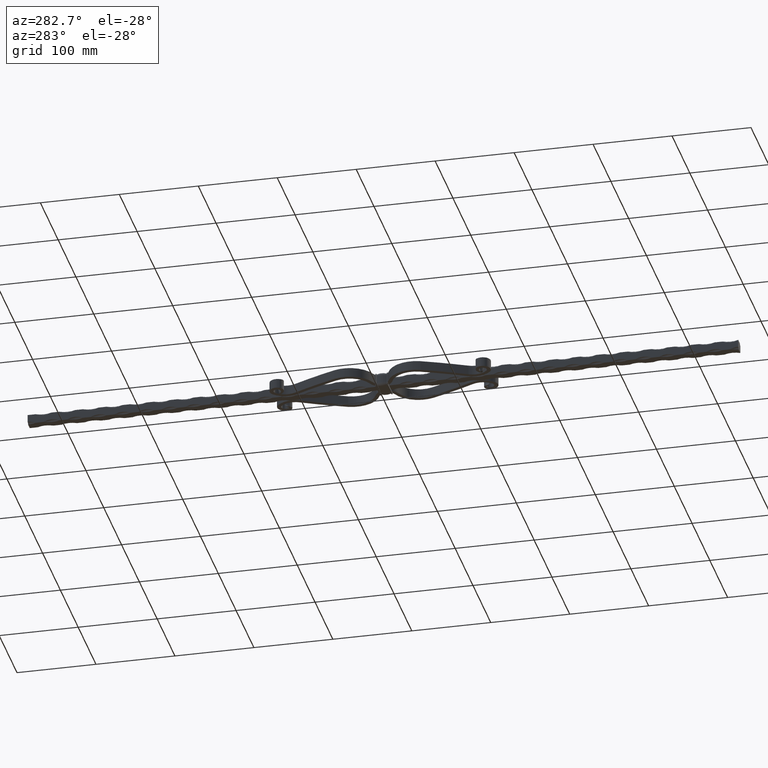
[diagram: clean part render]
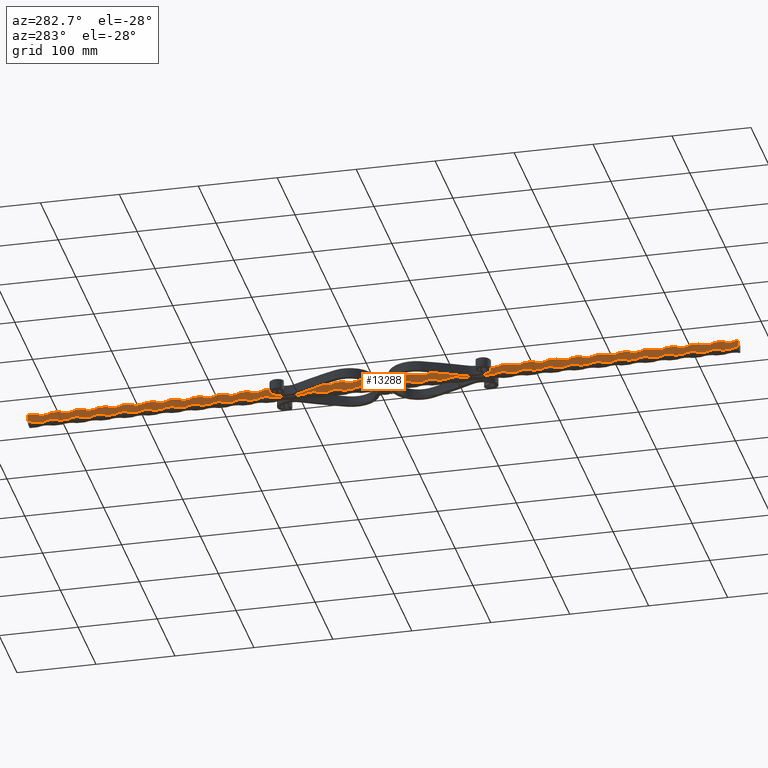
[diagram: same view with one face highlighted and labeled with its STEP entity id]
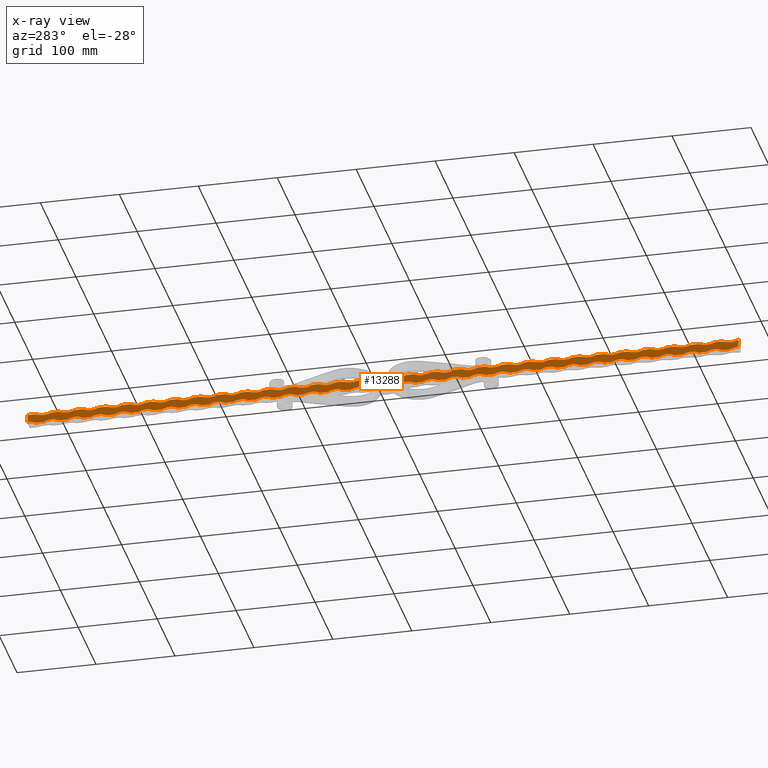
[diagram: x-ray of the same camera — body ghosted, the highlighted face saturated]
A machine part, auxiliary view. The second image highlights one B-rep face of the part: STEP entity #13288.
The next image is the same camera in x-ray: the body ghosted, the highlighted face saturated — about 0% of this face is hidden behind the body in this view.
In plain terms, the highlighted planar face has unit normal (1, 0, -0).
Its self-contained STEP definition (entity closure, byte-faithful):
#41 = CARTESIAN_POINT ( 'NONE',  ( -6.000000000000001776, 450.0000000000000000, -6.000000000000000888 ) ) ;
#55 = CARTESIAN_POINT ( 'NONE',  ( -6.000000000000000000, -360.0000000000000568, -24.75000000000002487 ) ) ;
#69 = DIRECTION ( 'NONE',  ( 1.000000000000000000, 0.000000000000000000, -1.445602896647339410E-16 ) ) ;
#76 = ORIENTED_EDGE ( 'NONE', *, *, #17804, .F. ) ;
#83 = EDGE_CURVE ( 'NONE', #11005, #17575, #21603, .T. ) ;
#117 = CARTESIAN_POINT ( 'NONE',  ( -6.000000000000001776, 450.0000000000000000, -6.000000000000000888 ) ) ;
#152 = AXIS2_PLACEMENT_3D ( 'NONE', #20464, #18555, #22284 ) ;
#165 = CARTESIAN_POINT ( 'NONE',  ( -5.999999999999997335, 10.00000000000000888, -6.000000000000002665 ) ) ;
#184 = EDGE_CURVE ( 'NONE', #10744, #3635, #11849, .T. ) ;
#198 = VECTOR ( 'NONE', #14918, 1000.000000000000000 ) ;
#204 = CARTESIAN_POINT ( 'NONE',  ( -6.000000000000000000, -279.9999999999999432, 5.999999999999999112 ) ) ;
#211 = ORIENTED_EDGE ( 'NONE', *, *, #7348, .T. ) ;
#218 = VERTEX_POINT ( 'NONE', #204 ) ;
#225 = CARTESIAN_POINT ( 'NONE',  ( -6.000000000000001776, 450.0000000000000000, -6.000000000000000888 ) ) ;
#229 = AXIS2_PLACEMENT_3D ( 'NONE', #6991, #3485, #5219 ) ;
#235 = EDGE_CURVE ( 'NONE', #2579, #1004, #18643, .T. ) ;
#244 = CARTESIAN_POINT ( 'NONE',  ( -5.999999999999995559, 130.0000000000000000, 24.75000000000002132 ) ) ;
#253 = EDGE_CURVE ( 'NONE', #5538, #13106, #10742, .T. ) ;
#258 = LINE ( 'NONE', #9389, #21722 ) ;
#261 = AXIS2_PLACEMENT_3D ( 'NONE', #244, #12348, #3710 ) ;
#262 = CIRCLE ( 'NONE', #4502, 21.25000000000002487 ) ;
#273 = CARTESIAN_POINT ( 'NONE',  ( -5.999999999999997335, -430.0000000000000000, -6.000000000000001776 ) ) ;
#278 = VERTEX_POINT ( 'NONE', #21378 ) ;
#290 = DIRECTION ( 'NONE',  ( -1.632680918566404821E-16, 0.000000000000000000, -1.000000000000000000 ) ) ;
#309 = VECTOR ( 'NONE', #19210, 1000.000000000000000 ) ;
#313 = CARTESIAN_POINT ( 'NONE',  ( -6.000000000000000000, 350.0000000000000000, 5.999999999999999112 ) ) ;
#315 = DIRECTION ( 'NONE',  ( -1.632680918566404574E-16, 0.000000000000000000, -1.000000000000000000 ) ) ;
#327 = DIRECTION ( 'NONE',  ( -0.000000000000000000, -1.000000000000000000, -0.000000000000000000 ) ) ;
#366 = DIRECTION ( 'NONE',  ( 1.000000000000000000, 0.000000000000000000, -1.445602896647339410E-16 ) ) ;
#410 = ORIENTED_EDGE ( 'NONE', *, *, #8834, .T. ) ;
#411 = CARTESIAN_POINT ( 'NONE',  ( -5.999999999999996447, 450.0000000000000000, -3.499999999999999556 ) ) ;
#417 = ORIENTED_EDGE ( 'NONE', *, *, #986, .T. ) ;
#441 = CARTESIAN_POINT ( 'NONE',  ( -5.999999999999997335, -340.0000000000000000, -6.000000000000001776 ) ) ;
#465 = CIRCLE ( 'NONE', #3400, 21.25000000000002842 ) ;
#509 = AXIS2_PLACEMENT_3D ( 'NONE', #12889, #12979, #12752 ) ;
#524 = VERTEX_POINT ( 'NONE', #19792 ) ;
#525 = EDGE_CURVE ( 'NONE', #10284, #22045, #10458, .T. ) ;
#526 = LINE ( 'NONE', #19220, #12786 ) ;
#529 = CARTESIAN_POINT ( 'NONE',  ( -6.000000000000000000, 329.9999999999999432, -24.75000000000002487 ) ) ;
#539 = DIRECTION ( 'NONE',  ( -0.000000000000000000, -1.000000000000000000, -0.000000000000000000 ) ) ;
#547 = LINE ( 'NONE', #20705, #11736 ) ;
#609 = EDGE_CURVE ( 'NONE', #20994, #12991, #22138, .T. ) ;
#671 = DIRECTION ( 'NONE',  ( 1.000000000000000000, 0.000000000000000000, -1.445602896647339410E-16 ) ) ;
#695 = VECTOR ( 'NONE', #18893, 1000.000000000000000 ) ;
#700 = VERTEX_POINT ( 'NONE', #13298 ) ;
#729 = CARTESIAN_POINT ( 'NONE',  ( -6.000000000000001776, 450.0000000000000000, -6.000000000000000888 ) ) ;
#733 = CARTESIAN_POINT ( 'NONE',  ( -5.999999999999995559, 159.9999999999999716, 24.75000000000002132 ) ) ;
#749 = CARTESIAN_POINT ( 'NONE',  ( -6.000000000000000000, 450.0000000000000000, 5.999999999999999112 ) ) ;
#787 = DIRECTION ( 'NONE',  ( -1.000000000000000000, -0.000000000000000000, 1.445602896647339410E-16 ) ) ;
#790 = CARTESIAN_POINT ( 'NONE',  ( -6.000000000000000000, -210.0000000000000284, -24.75000000000002487 ) ) ;
#792 = CARTESIAN_POINT ( 'NONE',  ( -5.999999999999995559, -410.0000000000000000, 24.75000000000002132 ) ) ;
#809 = CIRCLE ( 'NONE', #22300, 21.25000000000002487 ) ;
#817 = CARTESIAN_POINT ( 'NONE',  ( -6.000000000000000000, 450.0000000000000000, 5.999999999999999112 ) ) ;
#820 = CARTESIAN_POINT ( 'NONE',  ( -5.999999999999998224, -90.00000000000002842, 5.999999999999999112 ) ) ;
#821 = AXIS2_PLACEMENT_3D ( 'NONE', #8287, #3254, #20448 ) ;
#855 = CARTESIAN_POINT ( 'NONE',  ( -5.999999999999998224, -330.0000000000000000, 5.999999999999999112 ) ) ;
#871 = CARTESIAN_POINT ( 'NONE',  ( -5.999999999999997335, -290.0000000000000000, -6.000000000000002665 ) ) ;
#909 = DIRECTION ( 'NONE',  ( -1.632680918566404574E-16, 0.000000000000000000, -1.000000000000000000 ) ) ;
#939 = DIRECTION ( 'NONE',  ( 1.000000000000000000, 0.000000000000000000, -1.445602896647339410E-16 ) ) ;
#985 = DIRECTION ( 'NONE',  ( 1.000000000000000000, 0.000000000000000000, -1.445602896647339410E-16 ) ) ;
#986 = EDGE_CURVE ( 'NONE', #13024, #9685, #13808, .T. ) ;
#1004 = VERTEX_POINT ( 'NONE', #10426 ) ;
#1054 = CARTESIAN_POINT ( 'NONE',  ( -5.999999999999997335, -410.0000000000000000, -6.000000000000002665 ) ) ;
#1072 = VECTOR ( 'NONE', #10394, 1000.000000000000000 ) ;
#1094 = CARTESIAN_POINT ( 'NONE',  ( -5.999999999999997335, -200.0000000000000000, -6.000000000000002665 ) ) ;
#1107 = EDGE_CURVE ( 'NONE', #19287, #1128, #14334, .T. ) ;
#1112 = CARTESIAN_POINT ( 'NONE',  ( -5.999999999999998224, -29.99999999999997158, 5.999999999999999112 ) ) ;
#1128 = VERTEX_POINT ( 'NONE', #2482 ) ;
#1173 = CARTESIAN_POINT ( 'NONE',  ( -5.999999999999998224, -1.734723475976807094E-15, 5.999999999999999112 ) ) ;
#1180 = DIRECTION ( 'NONE',  ( -1.632680918566404574E-16, 0.000000000000000000, -1.000000000000000000 ) ) ;
#1186 = ORIENTED_EDGE ( 'NONE', *, *, #7069, .T. ) ;
#1208 = VERTEX_POINT ( 'NONE', #11276 ) ;
#1241 = VERTEX_POINT ( 'NONE', #18242 ) ;
#1258 = ORIENTED_EDGE ( 'NONE', *, *, #1889, .F. ) ;
#1296 = VECTOR ( 'NONE', #19937, 1000.000000000000000 ) ;
#1307 = CARTESIAN_POINT ( 'NONE',  ( -6.000000000000000000, 140.0000000000000000, 5.999999999999999112 ) ) ;
#1321 = DIRECTION ( 'NONE',  ( -1.632680918566404821E-16, 0.000000000000000000, -1.000000000000000000 ) ) ;
#1328 = CARTESIAN_POINT ( 'NONE',  ( -5.999999999999997335, 260.0000000000000000, -6.000000000000001776 ) ) ;
#1366 = CIRCLE ( 'NONE', #17203, 21.25000000000002487 ) ;
#1479 = ORIENTED_EDGE ( 'NONE', *, *, #21961, .F. ) ;
#1533 = EDGE_CURVE ( 'NONE', #22503, #19437, #17060, .T. ) ;
#1555 = CARTESIAN_POINT ( 'NONE',  ( -5.999999999999998224, 270.0000000000000000, 5.999999999999999112 ) ) ;
#1557 = EDGE_CURVE ( 'NONE', #22297, #7982, #14314, .T. ) ;
#1563 = DIRECTION ( 'NONE',  ( -1.632680918566404574E-16, 0.000000000000000000, -1.000000000000000000 ) ) ;
#1594 = CARTESIAN_POINT ( 'NONE',  ( -5.999999999999998224, 300.0000000000000000, 5.999999999999999112 ) ) ;
#1597 = EDGE_CURVE ( 'NONE', #8873, #8090, #10242, .T. ) ;
#1613 = EDGE_CURVE ( 'NONE', #7773, #4268, #2609, .T. ) ;
#1634 = LINE ( 'NONE', #18910, #19570 ) ;
#1650 = VECTOR ( 'NONE', #20461, 1000.000000000000000 ) ;
#1686 = EDGE_CURVE ( 'NONE', #18681, #13143, #7240, .T. ) ;
#1727 = LINE ( 'NONE', #7642, #10959 ) ;
#1731 = CARTESIAN_POINT ( 'NONE',  ( -5.999999999999998224, -300.0000000000000000, 5.999999999999999112 ) ) ;
#1792 = DIRECTION ( 'NONE',  ( -1.632680918566404574E-16, 0.000000000000000000, -1.000000000000000000 ) ) ;
#1834 = CARTESIAN_POINT ( 'NONE',  ( -5.999999999999997335, 370.0000000000000000, -6.000000000000002665 ) ) ;
#1835 = CIRCLE ( 'NONE', #20904, 21.25000000000002842 ) ;
#1889 = EDGE_CURVE ( 'NONE', #16988, #524, #14289, .T. ) ;
#1944 = VERTEX_POINT ( 'NONE', #6471 ) ;
#1965 = VERTEX_POINT ( 'NONE', #1094 ) ;
#1969 = CARTESIAN_POINT ( 'NONE',  ( -5.999999999999998224, 210.0000000000000000, 5.999999999999999112 ) ) ;
#1992 = CARTESIAN_POINT ( 'NONE',  ( -6.000000000000001776, 450.0000000000000000, -6.000000000000000888 ) ) ;
#2010 = DIRECTION ( 'NONE',  ( -1.632680918566404574E-16, 1.632680918566404427E-15, -1.000000000000000000 ) ) ;
#2018 = ORIENTED_EDGE ( 'NONE', *, *, #14162, .T. ) ;
#2025 = VECTOR ( 'NONE', #21565, 1000.000000000000000 ) ;
#2053 = CARTESIAN_POINT ( 'NONE',  ( -5.999999999999997335, -220.0000000000000284, -6.000000000000001776 ) ) ;
#2093 = DIRECTION ( 'NONE',  ( -1.632680918566404574E-16, 0.000000000000000000, -1.000000000000000000 ) ) ;
#2134 = DIRECTION ( 'NONE',  ( -1.632680918566404574E-16, 0.000000000000000000, -1.000000000000000000 ) ) ;
#2202 = EDGE_CURVE ( 'NONE', #7540, #12581, #15939, .T. ) ;
#2230 = VERTEX_POINT ( 'NONE', #15875 ) ;
#2318 = VECTOR ( 'NONE', #4012, 1000.000000000000000 ) ;
#2334 = CARTESIAN_POINT ( 'NONE',  ( -6.000000000000000000, 0.000000000000000000, -24.75000000000002487 ) ) ;
#2349 = VECTOR ( 'NONE', #16705, 1000.000000000000000 ) ;
#2368 = AXIS2_PLACEMENT_3D ( 'NONE', #8466, #13816, #8544 ) ;
#2375 = VECTOR ( 'NONE', #327, 1000.000000000000000 ) ;
#2388 = EDGE_CURVE ( 'NONE', #15954, #19648, #14832, .T. ) ;
#2394 = CARTESIAN_POINT ( 'NONE',  ( -6.000000000000000000, 290.0000000000000568, 5.999999999999999112 ) ) ;
#2410 = AXIS2_PLACEMENT_3D ( 'NONE', #21602, #787, #2515 ) ;
#2451 = DIRECTION ( 'NONE',  ( -0.000000000000000000, -1.000000000000000000, -0.000000000000000000 ) ) ;
#2453 = DIRECTION ( 'NONE',  ( -1.632680918566404821E-16, 0.000000000000000000, -1.000000000000000000 ) ) ;
#2456 = CARTESIAN_POINT ( 'NONE',  ( -6.000000000000000000, -39.99999999999997868, 5.999999999999999112 ) ) ;
#2482 = CARTESIAN_POINT ( 'NONE',  ( -6.000000000000000000, 230.0000000000000000, 5.999999999999999112 ) ) ;
#2513 = ORIENTED_EDGE ( 'NONE', *, *, #8155, .T. ) ;
#2515 = DIRECTION ( 'NONE',  ( -1.632680918566404574E-16, 0.000000000000000000, -1.000000000000000000 ) ) ;
#2518 = DIRECTION ( 'NONE',  ( -1.632680918566404821E-16, 0.000000000000000000, -1.000000000000000000 ) ) ;
#2558 = VECTOR ( 'NONE', #19114, 1000.000000000000000 ) ;
#2571 = DIRECTION ( 'NONE',  ( -1.632680918566404821E-16, 0.000000000000000000, -1.000000000000000000 ) ) ;
#2579 = VERTEX_POINT ( 'NONE', #13181 ) ;
#2609 = CIRCLE ( 'NONE', #17609, 21.25000000000002842 ) ;
#2619 = LINE ( 'NONE', #6362, #198 ) ;
#2621 = EDGE_CURVE ( 'NONE', #16663, #19785, #19431, .T. ) ;
#2639 = LINE ( 'NONE', #3663, #2375 ) ;
#2691 = AXIS2_PLACEMENT_3D ( 'NONE', #5048, #17213, #1792 ) ;
#2729 = CARTESIAN_POINT ( 'NONE',  ( -6.000000000000000000, 450.0000000000000000, 5.999999999999999112 ) ) ;
#2741 = AXIS2_PLACEMENT_3D ( 'NONE', #3017, #8131, #8196 ) ;
#2847 = DIRECTION ( 'NONE',  ( -0.000000000000000000, -1.000000000000000000, -0.000000000000000000 ) ) ;
#2872 = CARTESIAN_POINT ( 'NONE',  ( -5.999999999999998224, -120.0000000000000568, 5.999999999999999112 ) ) ;
#2919 = EDGE_CURVE ( 'NONE', #6344, #18609, #16447, .T. ) ;
#2922 = DIRECTION ( 'NONE',  ( 1.000000000000000000, 0.000000000000000000, -1.445602896647339410E-16 ) ) ;
#3012 = ORIENTED_EDGE ( 'NONE', *, *, #7022, .T. ) ;
#3017 = CARTESIAN_POINT ( 'NONE',  ( -5.999999999999995559, 190.0000000000000000, 24.75000000000002132 ) ) ;
#3028 = CARTESIAN_POINT ( 'NONE',  ( -6.000000000000000000, 420.0000000000000000, -24.75000000000002487 ) ) ;
#3036 = VECTOR ( 'NONE', #12703, 1000.000000000000000 ) ;
#3040 = ORIENTED_EDGE ( 'NONE', *, *, #15961, .T. ) ;
#3046 = VECTOR ( 'NONE', #22460, 1000.000000000000000 ) ;
#3059 = CIRCLE ( 'NONE', #12988, 21.25000000000002487 ) ;
#3105 = AXIS2_PLACEMENT_3D ( 'NONE', #17514, #21005, #8763 ) ;
#3106 = EDGE_CURVE ( 'NONE', #18836, #7354, #5799, .T. ) ;
#3146 = EDGE_CURVE ( 'NONE', #11560, #13106, #14525, .T. ) ;
#3174 = CIRCLE ( 'NONE', #19275, 21.25000000000002842 ) ;
#3180 = AXIS2_PLACEMENT_3D ( 'NONE', #16904, #4803, #15010 ) ;
#3227 = EDGE_CURVE ( 'NONE', #16988, #17781, #22422, .T. ) ;
#3250 = DIRECTION ( 'NONE',  ( -1.632680918566404574E-16, 0.000000000000000000, -1.000000000000000000 ) ) ;
#3254 = DIRECTION ( 'NONE',  ( -1.000000000000000000, -0.000000000000000000, 1.445602896647339410E-16 ) ) ;
#3325 = VECTOR ( 'NONE', #7454, 1000.000000000000000 ) ;
#3337 = ORIENTED_EDGE ( 'NONE', *, *, #22356, .T. ) ;
#3356 = ORIENTED_EDGE ( 'NONE', *, *, #13386, .T. ) ;
#3380 = CARTESIAN_POINT ( 'NONE',  ( -5.999999999999997335, -440.0000000000000000, -6.000000000000002665 ) ) ;
#3400 = AXIS2_PLACEMENT_3D ( 'NONE', #14708, #10986, #12822 ) ;
#3454 = DIRECTION ( 'NONE',  ( -1.445602896647339410E-16, 0.000000000000000000, -1.000000000000000000 ) ) ;
#3455 = VECTOR ( 'NONE', #17973, 1000.000000000000000 ) ;
#3485 = DIRECTION ( 'NONE',  ( -1.000000000000000000, -0.000000000000000000, 1.445602896647339410E-16 ) ) ;
#3540 = EDGE_CURVE ( 'NONE', #10151, #19648, #7977, .T. ) ;
#3635 = VERTEX_POINT ( 'NONE', #22485 ) ;
#3657 = ORIENTED_EDGE ( 'NONE', *, *, #11310, .F. ) ;
#3663 = CARTESIAN_POINT ( 'NONE',  ( -6.000000000000000000, 450.0000000000000000, 5.999999999999999112 ) ) ;
#3683 = ORIENTED_EDGE ( 'NONE', *, *, #5921, .T. ) ;
#3699 = EDGE_CURVE ( 'NONE', #7501, #17575, #14505, .T. ) ;
#3710 = DIRECTION ( 'NONE',  ( -1.632680918566404821E-16, 0.000000000000000000, -1.000000000000000000 ) ) ;
#3713 = ORIENTED_EDGE ( 'NONE', *, *, #16750, .F. ) ;
#3715 = DIRECTION ( 'NONE',  ( -1.000000000000000000, -0.000000000000000000, 1.445602896647339410E-16 ) ) ;
#3730 = CARTESIAN_POINT ( 'NONE',  ( -5.999999999999997335, -249.9999999999999432, -6.000000000000001776 ) ) ;
#3734 = ORIENTED_EDGE ( 'NONE', *, *, #15994, .T. ) ;
#3823 = EDGE_CURVE ( 'NONE', #17201, #14558, #11820, .T. ) ;
#3861 = CIRCLE ( 'NONE', #16568, 21.25000000000002842 ) ;
#3866 = ORIENTED_EDGE ( 'NONE', *, *, #16401, .F. ) ;
#3902 = CIRCLE ( 'NONE', #22384, 21.25000000000002487 ) ;
#3930 = VECTOR ( 'NONE', #539, 1000.000000000000000 ) ;
#3939 = VECTOR ( 'NONE', #17426, 1000.000000000000000 ) ;
#4012 = DIRECTION ( 'NONE',  ( -0.000000000000000000, -1.000000000000000000, -0.000000000000000000 ) ) ;
#4018 = VERTEX_POINT ( 'NONE', #5341 ) ;
#4066 = CARTESIAN_POINT ( 'NONE',  ( -5.999999999999998224, 149.9999999999999716, 5.999999999999999112 ) ) ;
#4097 = CARTESIAN_POINT ( 'NONE',  ( -6.000000000000000000, 450.0000000000000000, 5.999999999999999112 ) ) ;
#4158 = VERTEX_POINT ( 'NONE', #3730 ) ;
#4175 = AXIS2_PLACEMENT_3D ( 'NONE', #19128, #12165, #5276 ) ;
#4212 = DIRECTION ( 'NONE',  ( 1.000000000000000000, 0.000000000000000000, -1.445602896647339410E-16 ) ) ;
#4216 = VERTEX_POINT ( 'NONE', #12373 ) ;
#4220 = DIRECTION ( 'NONE',  ( -1.632680918566404821E-16, 0.000000000000000000, -1.000000000000000000 ) ) ;
#4242 = CARTESIAN_POINT ( 'NONE',  ( -6.000000000000000000, 450.0000000000000000, 5.999999999999999112 ) ) ;
#4243 = CIRCLE ( 'NONE', #12202, 21.25000000000002487 ) ;
#4268 = VERTEX_POINT ( 'NONE', #11272 ) ;
#4272 = EDGE_CURVE ( 'NONE', #7369, #17428, #18850, .T. ) ;
#4278 = CIRCLE ( 'NONE', #10557, 21.25000000000002487 ) ;
#4300 = CARTESIAN_POINT ( 'NONE',  ( -5.999999999999997335, -279.9999999999999432, -6.000000000000001776 ) ) ;
#4348 = VERTEX_POINT ( 'NONE', #6280 ) ;
#4354 = CARTESIAN_POINT ( 'NONE',  ( -5.999999999999997335, -19.99999999999996092, -6.000000000000002665 ) ) ;
#4370 = DIRECTION ( 'NONE',  ( -0.000000000000000000, -1.000000000000000000, -0.000000000000000000 ) ) ;
#4445 = CARTESIAN_POINT ( 'NONE',  ( -6.000000000000001776, -450.0000000000000000, -6.000000000000000888 ) ) ;
#4461 = CIRCLE ( 'NONE', #2368, 21.25000000000002487 ) ;
#4478 = DIRECTION ( 'NONE',  ( -0.000000000000000000, -1.000000000000000000, -0.000000000000000000 ) ) ;
#4502 = AXIS2_PLACEMENT_3D ( 'NONE', #16534, #11067, #7708 ) ;
#4521 = AXIS2_PLACEMENT_3D ( 'NONE', #10639, #21136, #15754 ) ;
#4553 = CARTESIAN_POINT ( 'NONE',  ( -5.999999999999997335, 70.00000000000000000, -6.000000000000002665 ) ) ;
#4604 = LINE ( 'NONE', #729, #8979 ) ;
#4605 = DIRECTION ( 'NONE',  ( 1.445602896647339163E-16, 0.000000000000000000, 1.000000000000000000 ) ) ;
#4625 = CARTESIAN_POINT ( 'NONE',  ( -6.000000000000000000, 380.0000000000000000, 5.999999999999999112 ) ) ;
#4685 = EDGE_CURVE ( 'NONE', #15342, #10946, #19360, .T. ) ;
#4690 = VERTEX_POINT ( 'NONE', #9324 ) ;
#4744 = DIRECTION ( 'NONE',  ( -1.632680918566404574E-16, 0.000000000000000000, -1.000000000000000000 ) ) ;
#4775 = VECTOR ( 'NONE', #7739, 1000.000000000000000 ) ;
#4788 = DIRECTION ( 'NONE',  ( 1.000000000000000000, 0.000000000000000000, -1.445602896647339410E-16 ) ) ;
#4803 = DIRECTION ( 'NONE',  ( -1.000000000000000000, -0.000000000000000000, 1.445602896647339410E-16 ) ) ;
#4808 = CARTESIAN_POINT ( 'NONE',  ( -5.999999999999997335, 19.99999999999996092, -6.000000000000001776 ) ) ;
#4814 = DIRECTION ( 'NONE',  ( -1.632680918566404821E-16, 0.000000000000000000, -1.000000000000000000 ) ) ;
#4841 = VECTOR ( 'NONE', #15892, 1000.000000000000000 ) ;
#4855 = CARTESIAN_POINT ( 'NONE',  ( -5.999999999999998224, 60.00000000000000000, 5.999999999999999112 ) ) ;
#4865 = EDGE_CURVE ( 'NONE', #13024, #2230, #12035, .T. ) ;
#4869 = CARTESIAN_POINT ( 'NONE',  ( -5.999999999999997335, 80.00000000000001421, -6.000000000000001776 ) ) ;
#4881 = CARTESIAN_POINT ( 'NONE',  ( -6.000000000000000000, 450.0000000000000000, 5.999999999999999112 ) ) ;
#4908 = CARTESIAN_POINT ( 'NONE',  ( -6.000000000000000000, -180.0000000000000000, -24.75000000000002487 ) ) ;
#4922 = AXIS2_PLACEMENT_3D ( 'NONE', #4908, #13616, #3250 ) ;
#4923 = DIRECTION ( 'NONE',  ( -1.632680918566404574E-16, 0.000000000000000000, -1.000000000000000000 ) ) ;
#4936 = LINE ( 'NONE', #6641, #3046 ) ;
#4988 = CARTESIAN_POINT ( 'NONE',  ( -6.000000000000001776, -450.0000000000000000, -3.500000000000000444 ) ) ;
#5032 = ORIENTED_EDGE ( 'NONE', *, *, #7465, .F. ) ;
#5043 = CIRCLE ( 'NONE', #5159, 21.25000000000002842 ) ;
#5048 = CARTESIAN_POINT ( 'NONE',  ( -6.000000000000000000, -450.0000000000000000, -24.75000000000002487 ) ) ;
#5090 = ORIENTED_EDGE ( 'NONE', *, *, #11924, .T. ) ;
#5108 = AXIS2_PLACEMENT_3D ( 'NONE', #15251, #16759, #22233 ) ;
#5159 = AXIS2_PLACEMENT_3D ( 'NONE', #790, #10907, #14700 ) ;
#5176 = EDGE_CURVE ( 'NONE', #19372, #18878, #9835, .T. ) ;
#5219 = DIRECTION ( 'NONE',  ( -1.632680918566404574E-16, 0.000000000000000000, -1.000000000000000000 ) ) ;
#5243 = VERTEX_POINT ( 'NONE', #4625 ) ;
#5250 = VERTEX_POINT ( 'NONE', #4553 ) ;
#5276 = DIRECTION ( 'NONE',  ( -1.632680918566404574E-16, 0.000000000000000000, -1.000000000000000000 ) ) ;
#5300 = VERTEX_POINT ( 'NONE', #20330 ) ;
#5309 = VECTOR ( 'NONE', #17809, 1000.000000000000000 ) ;
#5330 = CARTESIAN_POINT ( 'NONE',  ( -6.000000000000000000, 450.0000000000000000, 5.999999999999999112 ) ) ;
#5341 = CARTESIAN_POINT ( 'NONE',  ( -5.999999999999998224, -389.9999999999999432, 5.999999999999999112 ) ) ;
#5381 = VECTOR ( 'NONE', #22065, 1000.000000000000000 ) ;
#5492 = DIRECTION ( 'NONE',  ( -1.632680918566404574E-16, 0.000000000000000000, -1.000000000000000000 ) ) ;
#5493 = ORIENTED_EDGE ( 'NONE', *, *, #9124, .F. ) ;
#5514 = ORIENTED_EDGE ( 'NONE', *, *, #253, .T. ) ;
#5538 = VERTEX_POINT ( 'NONE', #8724 ) ;
#5539 = VERTEX_POINT ( 'NONE', #10339 ) ;
#5544 = CIRCLE ( 'NONE', #14952, 21.25000000000002842 ) ;
#5557 = CARTESIAN_POINT ( 'NONE',  ( -6.000000000000000000, 60.00000000000000000, -24.75000000000002487 ) ) ;
#5566 = EDGE_CURVE ( 'NONE', #6017, #12713, #16941, .T. ) ;
#5572 = DIRECTION ( 'NONE',  ( -1.000000000000000000, -0.000000000000000000, 1.445602896647339410E-16 ) ) ;
#5608 = CARTESIAN_POINT ( 'NONE',  ( -5.999999999999997335, -100.0000000000000284, -6.000000000000001776 ) ) ;
#5620 = ORIENTED_EDGE ( 'NONE', *, *, #7309, .T. ) ;
#5630 = VERTEX_POINT ( 'NONE', #12905 ) ;
#5646 = AXIS2_PLACEMENT_3D ( 'NONE', #17822, #10846, #14057 ) ;
#5720 = EDGE_CURVE ( 'NONE', #14236, #8821, #5987, .T. ) ;
#5761 = ORIENTED_EDGE ( 'NONE', *, *, #1107, .T. ) ;
#5782 = ORIENTED_EDGE ( 'NONE', *, *, #8960, .T. ) ;
#5784 = EDGE_CURVE ( 'NONE', #16108, #10440, #3059, .T. ) ;
#5799 = CIRCLE ( 'NONE', #18197, 21.25000000000002842 ) ;
#5816 = ORIENTED_EDGE ( 'NONE', *, *, #12217, .T. ) ;
#5830 = ORIENTED_EDGE ( 'NONE', *, *, #11618, .T. ) ;
#5884 = LINE ( 'NONE', #21824, #1296 ) ;
#5899 = EDGE_CURVE ( 'NONE', #12360, #17024, #10674, .T. ) ;
#5921 = EDGE_CURVE ( 'NONE', #17881, #5300, #4936, .T. ) ;
#5928 = VERTEX_POINT ( 'NONE', #21165 ) ;
#5972 = ORIENTED_EDGE ( 'NONE', *, *, #3540, .F. ) ;
#5987 = CIRCLE ( 'NONE', #19558, 21.25000000000002842 ) ;
#6006 = DIRECTION ( 'NONE',  ( -1.000000000000000000, -0.000000000000000000, 1.445602896647339410E-16 ) ) ;
#6017 = VERTEX_POINT ( 'NONE', #7690 ) ;
#6035 = CARTESIAN_POINT ( 'NONE',  ( -5.999999999999997335, -190.0000000000000000, -6.000000000000001776 ) ) ;
#6042 = ORIENTED_EDGE ( 'NONE', *, *, #21402, .T. ) ;
#6073 = CARTESIAN_POINT ( 'NONE',  ( -6.000000000000001776, 450.0000000000000000, -6.000000000000000888 ) ) ;
#6118 = VECTOR ( 'NONE', #22170, 1000.000000000000000 ) ;
#6134 = LINE ( 'NONE', #9353, #11352 ) ;
#6196 = CARTESIAN_POINT ( 'NONE',  ( -6.000000000000000000, -219.9999999999999147, 5.999999999999999112 ) ) ;
#6198 = VECTOR ( 'NONE', #18813, 1000.000000000000000 ) ;
#6221 = DIRECTION ( 'NONE',  ( 1.000000000000000000, 0.000000000000000000, -1.445602896647339410E-16 ) ) ;
#6226 = EDGE_CURVE ( 'NONE', #17072, #5539, #12338, .T. ) ;
#6228 = CARTESIAN_POINT ( 'NONE',  ( -5.999999999999997335, -320.0000000000000000, -6.000000000000002665 ) ) ;
#6254 = VERTEX_POINT ( 'NONE', #11811 ) ;
#6255 = CIRCLE ( 'NONE', #19821, 21.25000000000002487 ) ;
#6280 = CARTESIAN_POINT ( 'NONE',  ( -5.999999999999998224, -420.0000000000000000, 5.999999999999999112 ) ) ;
#6294 = CARTESIAN_POINT ( 'NONE',  ( -5.999999999999997335, 139.9999999999999716, -6.000000000000001776 ) ) ;
#6344 = VERTEX_POINT ( 'NONE', #19162 ) ;
#6362 = CARTESIAN_POINT ( 'NONE',  ( -6.000000000000000000, 450.0000000000000000, 5.999999999999999112 ) ) ;
#6441 = ORIENTED_EDGE ( 'NONE', *, *, #12478, .F. ) ;
#6468 = LINE ( 'NONE', #18437, #5381 ) ;
#6471 = CARTESIAN_POINT ( 'NONE',  ( -6.000000000000000000, -70.00000000000000000, 5.999999999999999112 ) ) ;
#6494 = DIRECTION ( 'NONE',  ( -1.000000000000000000, -0.000000000000000000, 1.445602896647339410E-16 ) ) ;
#6538 = ORIENTED_EDGE ( 'NONE', *, *, #20145, .T. ) ;
#6582 = ORIENTED_EDGE ( 'NONE', *, *, #525, .T. ) ;
#6593 = AXIS2_PLACEMENT_3D ( 'NONE', #22566, #10402, #19354 ) ;
#6641 = CARTESIAN_POINT ( 'NONE',  ( -6.000000000000001776, 450.0000000000000000, -6.000000000000000888 ) ) ;
#6670 = CARTESIAN_POINT ( 'NONE',  ( -5.999999999999998224, 240.0000000000000000, 5.999999999999999112 ) ) ;
#6719 = AXIS2_PLACEMENT_3D ( 'NONE', #55, #13901, #15874 ) ;
#6761 = CARTESIAN_POINT ( 'NONE',  ( -6.000000000000000000, -450.0000000000000000, 5.999999999999999112 ) ) ;
#6840 = CARTESIAN_POINT ( 'NONE',  ( -6.000000000000001776, 450.0000000000000000, -6.000000000000000888 ) ) ;
#6970 = VECTOR ( 'NONE', #10721, 1000.000000000000000 ) ;
#6972 = LINE ( 'NONE', #4242, #15150 ) ;
#6991 = CARTESIAN_POINT ( 'NONE',  ( -6.000000000000000000, -330.0000000000000000, -24.75000000000002487 ) ) ;
#7022 = EDGE_CURVE ( 'NONE', #14293, #1208, #19072, .T. ) ;
#7069 = EDGE_CURVE ( 'NONE', #18836, #11757, #17177, .T. ) ;
#7148 = ORIENTED_EDGE ( 'NONE', *, *, #16449, .T. ) ;
#7228 = LINE ( 'NONE', #117, #16487 ) ;
#7240 = CIRCLE ( 'NONE', #17166, 21.25000000000002842 ) ;
#7274 = ORIENTED_EDGE ( 'NONE', *, *, #15224, .F. ) ;
#7309 = EDGE_CURVE ( 'NONE', #9936, #278, #6255, .T. ) ;
#7325 = DIRECTION ( 'NONE',  ( -1.000000000000000000, -0.000000000000000000, 1.445602896647339410E-16 ) ) ;
#7348 = EDGE_CURVE ( 'NONE', #14126, #21898, #13657, .T. ) ;
#7352 = DIRECTION ( 'NONE',  ( 1.000000000000000000, 0.000000000000000000, -1.445602896647339410E-16 ) ) ;
#7354 = VERTEX_POINT ( 'NONE', #9377 ) ;
#7367 = VECTOR ( 'NONE', #8704, 1000.000000000000000 ) ;
#7369 = VERTEX_POINT ( 'NONE', #1328 ) ;
#7402 = DIRECTION ( 'NONE',  ( -0.000000000000000000, -1.000000000000000000, -0.000000000000000000 ) ) ;
#7450 = VERTEX_POINT ( 'NONE', #1555 ) ;
#7454 = DIRECTION ( 'NONE',  ( -0.000000000000000000, -1.000000000000000000, -0.000000000000000000 ) ) ;
#7465 = EDGE_CURVE ( 'NONE', #15689, #14816, #547, .T. ) ;
#7492 = CARTESIAN_POINT ( 'NONE',  ( -6.000000000000000000, 450.0000000000000000, 5.999999999999999112 ) ) ;
#7501 = VERTEX_POINT ( 'NONE', #4869 ) ;
#7540 = VERTEX_POINT ( 'NONE', #15837 ) ;
#7569 = CARTESIAN_POINT ( 'NONE',  ( -6.000000000000000000, -60.00000000000000000, -24.75000000000002487 ) ) ;
#7625 = DIRECTION ( 'NONE',  ( 1.000000000000000000, 0.000000000000000000, -1.445602896647339410E-16 ) ) ;
#7642 = CARTESIAN_POINT ( 'NONE',  ( -6.000000000000001776, 450.0000000000000000, -6.000000000000000888 ) ) ;
#7690 = CARTESIAN_POINT ( 'NONE',  ( -5.999999999999998224, -180.0000000000000000, 5.999999999999999112 ) ) ;
#7707 = ORIENTED_EDGE ( 'NONE', *, *, #5899, .F. ) ;
#7708 = DIRECTION ( 'NONE',  ( -1.632680918566404821E-16, 0.000000000000000000, -1.000000000000000000 ) ) ;
#7739 = DIRECTION ( 'NONE',  ( -0.000000000000000000, -1.000000000000000000, -0.000000000000000000 ) ) ;
#7759 = EDGE_CURVE ( 'NONE', #12360, #21041, #10895, .T. ) ;
#7769 = ORIENTED_EDGE ( 'NONE', *, *, #1597, .F. ) ;
#7773 = VERTEX_POINT ( 'NONE', #4300 ) ;
#7829 = CARTESIAN_POINT ( 'NONE',  ( -5.999999999999995559, 250.0000000000000000, 24.75000000000002132 ) ) ;
#7905 = CARTESIAN_POINT ( 'NONE',  ( -6.000000000000001776, 450.0000000000000000, -6.000000000000000888 ) ) ;
#7924 = DIRECTION ( 'NONE',  ( -1.632680918566404821E-16, 0.000000000000000000, -1.000000000000000000 ) ) ;
#7941 = VECTOR ( 'NONE', #10306, 1000.000000000000000 ) ;
#7955 = DIRECTION ( 'NONE',  ( -0.000000000000000000, -1.000000000000000000, -0.000000000000000000 ) ) ;
#7977 = CIRCLE ( 'NONE', #4175, 21.25000000000002842 ) ;
#7982 = VERTEX_POINT ( 'NONE', #12485 ) ;
#7995 = DIRECTION ( 'NONE',  ( -0.000000000000000000, -1.000000000000000000, -0.000000000000000000 ) ) ;
#8011 = VERTEX_POINT ( 'NONE', #19438 ) ;
#8019 = EDGE_LOOP ( 'NONE', ( #6582, #13141, #8596, #20636, #21701, #16257, #14154, #13512, #14542, #22316, #6538, #3713, #20632, #21787, #15295, #20169, #3356, #20898, #16537, #19809, #5514, #10026, #11802, #20593, #211, #16696, #19060, #22454, #20213, #8648, #7148, #3657, #3683, #19422, #18303, #11480, #13021, #5972, #8794, #20434, #3337, #22514, #19913, #5782, #8304, #410, #3866, #15948, #12686, #12677, #10951, #10766, #6441, #5830, #7274, #2513, #8220, #18566, #15750, #19314, #8468, #19702, #18257, #3734, #13297, #5090, #11187, #9453, #10158, #5620, #15448, #18091, #18387, #12858, #5032, #17092, #15596, #19386, #11451, #417, #15672, #21414, #7707, #18984, #9956, #5761, #18497, #3040, #5493, #2018, #8578, #6042, #12679, #5816, #13432, #13274, #21698, #11229, #16391, #12547, #7769, #9657, #9058, #18100, #17619, #19529, #1258, #19141, #12406, #15140, #12574, #12845, #12964, #1186, #8989, #21710, #76, #3012, #1479, #12429, #11264, #11533, #11383 ) ) ;
#8021 = EDGE_CURVE ( 'NONE', #8011, #15165, #20421, .T. ) ;
#8090 = VERTEX_POINT ( 'NONE', #10790 ) ;
#8131 = DIRECTION ( 'NONE',  ( 1.000000000000000000, 0.000000000000000000, -1.445602896647339410E-16 ) ) ;
#8155 = EDGE_CURVE ( 'NONE', #16121, #20811, #8432, .T. ) ;
#8196 = DIRECTION ( 'NONE',  ( -1.632680918566404821E-16, 0.000000000000000000, -1.000000000000000000 ) ) ;
#8220 = ORIENTED_EDGE ( 'NONE', *, *, #10143, .F. ) ;
#8283 = VERTEX_POINT ( 'NONE', #19200 ) ;
#8287 = CARTESIAN_POINT ( 'NONE',  ( -6.000000000000000000, 120.0000000000000000, -24.75000000000002487 ) ) ;
#8304 = ORIENTED_EDGE ( 'NONE', *, *, #18743, .F. ) ;
#8374 = EDGE_CURVE ( 'NONE', #4216, #524, #4604, .T. ) ;
#8382 = AXIS2_PLACEMENT_3D ( 'NONE', #18771, #22088, #15348 ) ;
#8385 = EDGE_CURVE ( 'NONE', #19938, #3635, #19837, .T. ) ;
#8432 = CIRCLE ( 'NONE', #8911, 21.25000000000002487 ) ;
#8436 = DIRECTION ( 'NONE',  ( -1.000000000000000000, -0.000000000000000000, 1.445602896647339410E-16 ) ) ;
#8466 = CARTESIAN_POINT ( 'NONE',  ( -5.999999999999995559, 430.0000000000000000, 24.75000000000002132 ) ) ;
#8468 = ORIENTED_EDGE ( 'NONE', *, *, #16955, .F. ) ;
#8480 = VECTOR ( 'NONE', #9855, 1000.000000000000000 ) ;
#8501 = VERTEX_POINT ( 'NONE', #18212 ) ;
#8537 = EDGE_CURVE ( 'NONE', #16637, #18609, #1634, .T. ) ;
#8544 = DIRECTION ( 'NONE',  ( -1.632680918566404821E-16, 0.000000000000000000, -1.000000000000000000 ) ) ;
#8578 = ORIENTED_EDGE ( 'NONE', *, *, #609, .F. ) ;
#8596 = ORIENTED_EDGE ( 'NONE', *, *, #83, .T. ) ;
#8628 = VERTEX_POINT ( 'NONE', #22174 ) ;
#8639 = AXIS2_PLACEMENT_3D ( 'NONE', #733, #16377, #2453 ) ;
#8643 = LINE ( 'NONE', #7905, #17357 ) ;
#8648 = ORIENTED_EDGE ( 'NONE', *, *, #1686, .F. ) ;
#8672 = CARTESIAN_POINT ( 'NONE',  ( -5.999999999999995559, 100.0000000000000284, 24.75000000000002132 ) ) ;
#8704 = DIRECTION ( 'NONE',  ( -0.000000000000000000, -1.000000000000000000, -0.000000000000000000 ) ) ;
#8724 = CARTESIAN_POINT ( 'NONE',  ( -5.999999999999997335, -159.9999999999999716, -6.000000000000001776 ) ) ;
#8725 = CARTESIAN_POINT ( 'NONE',  ( -5.999999999999997335, 229.9999999999999716, -6.000000000000001776 ) ) ;
#8763 = DIRECTION ( 'NONE',  ( -1.632680918566404821E-16, 0.000000000000000000, -1.000000000000000000 ) ) ;
#8772 = DIRECTION ( 'NONE',  ( -0.000000000000000000, -1.000000000000000000, -0.000000000000000000 ) ) ;
#8788 = DIRECTION ( 'NONE',  ( -1.000000000000000000, -0.000000000000000000, 1.445602896647339410E-16 ) ) ;
#8794 = ORIENTED_EDGE ( 'NONE', *, *, #17424, .T. ) ;
#8821 = VERTEX_POINT ( 'NONE', #411 ) ;
#8834 = EDGE_CURVE ( 'NONE', #4018, #10401, #262, .T. ) ;
#8849 = CARTESIAN_POINT ( 'NONE',  ( -5.999999999999998224, 360.0000000000000000, 5.999999999999999112 ) ) ;
#8857 = DIRECTION ( 'NONE',  ( -0.000000000000000000, -1.000000000000000000, -0.000000000000000000 ) ) ;
#8873 = VERTEX_POINT ( 'NONE', #12892 ) ;
#8911 = AXIS2_PLACEMENT_3D ( 'NONE', #18448, #2922, #13364 ) ;
#8934 = DIRECTION ( 'NONE',  ( -0.000000000000000000, -1.000000000000000000, -0.000000000000000000 ) ) ;
#8936 = CARTESIAN_POINT ( 'NONE',  ( -6.000000000000000000, -399.9999999999999432, 5.999999999999999112 ) ) ;
#8940 = DIRECTION ( 'NONE',  ( -0.000000000000000000, -1.000000000000000000, -0.000000000000000000 ) ) ;
#8947 = CARTESIAN_POINT ( 'NONE',  ( -6.000000000000000000, 450.0000000000000000, 5.999999999999999112 ) ) ;
#8960 = EDGE_CURVE ( 'NONE', #4348, #14870, #17658, .T. ) ;
#8979 = VECTOR ( 'NONE', #12894, 1000.000000000000000 ) ;
#8989 = ORIENTED_EDGE ( 'NONE', *, *, #14675, .F. ) ;
#9058 = ORIENTED_EDGE ( 'NONE', *, *, #5720, .F. ) ;
#9068 = CARTESIAN_POINT ( 'NONE',  ( -5.999999999999997335, -229.9999999999999147, -6.000000000000002665 ) ) ;
#9089 = VERTEX_POINT ( 'NONE', #6228 ) ;
#9092 = CARTESIAN_POINT ( 'NONE',  ( -5.999999999999998224, 120.0000000000000000, 5.999999999999999112 ) ) ;
#9097 = DIRECTION ( 'NONE',  ( -0.000000000000000000, -1.000000000000000000, -0.000000000000000000 ) ) ;
#9124 = EDGE_CURVE ( 'NONE', #7450, #12613, #13049, .T. ) ;
#9166 = LINE ( 'NONE', #14966, #2349 ) ;
#9169 = AXIS2_PLACEMENT_3D ( 'NONE', #7569, #6006, #21306 ) ;
#9206 = DIRECTION ( 'NONE',  ( -1.632680918566404821E-16, 0.000000000000000000, -1.000000000000000000 ) ) ;
#9214 = CARTESIAN_POINT ( 'NONE',  ( -5.999999999999997335, -80.00000000000001421, -6.000000000000002665 ) ) ;
#9324 = CARTESIAN_POINT ( 'NONE',  ( -5.999999999999997335, 190.0000000000000000, -6.000000000000002665 ) ) ;
#9352 = VECTOR ( 'NONE', #19929, 1000.000000000000000 ) ;
#9353 = CARTESIAN_POINT ( 'NONE',  ( -6.000000000000001776, 450.0000000000000000, -6.000000000000000888 ) ) ;
#9377 = CARTESIAN_POINT ( 'NONE',  ( -5.999999999999997335, 310.0000000000000000, -6.000000000000002665 ) ) ;
#9389 = CARTESIAN_POINT ( 'NONE',  ( -6.000000000000001776, 450.0000000000000000, -6.000000000000000888 ) ) ;
#9413 = VERTEX_POINT ( 'NONE', #4066 ) ;
#9431 = CARTESIAN_POINT ( 'NONE',  ( -6.000000000000001776, 450.0000000000000000, -6.000000000000000888 ) ) ;
#9441 = LINE ( 'NONE', #5330, #3939 ) ;
#9452 = CARTESIAN_POINT ( 'NONE',  ( -6.000000000000001776, 450.0000000000000000, -6.000000000000000888 ) ) ;
#9453 = ORIENTED_EDGE ( 'NONE', *, *, #8021, .T. ) ;
#9506 = CARTESIAN_POINT ( 'NONE',  ( -6.000000000000000000, 260.0000000000000000, 5.999999999999999112 ) ) ;
#9554 = CARTESIAN_POINT ( 'NONE',  ( -6.000000000000000000, -149.9999999999999716, -24.75000000000002487 ) ) ;
#9609 = CARTESIAN_POINT ( 'NONE',  ( -5.999999999999997335, 380.0000000000000000, -6.000000000000001776 ) ) ;
#9657 = ORIENTED_EDGE ( 'NONE', *, *, #14779, .F. ) ;
#9671 = DIRECTION ( 'NONE',  ( -0.000000000000000000, -1.000000000000000000, -0.000000000000000000 ) ) ;
#9685 = VERTEX_POINT ( 'NONE', #1307 ) ;
#9714 = EDGE_CURVE ( 'NONE', #15689, #5928, #4278, .T. ) ;
#9768 = AXIS2_PLACEMENT_3D ( 'NONE', #15970, #21249, #290 ) ;
#9790 = CARTESIAN_POINT ( 'NONE',  ( -5.999999999999998224, -239.9999999999999432, 5.999999999999999112 ) ) ;
#9791 = EDGE_CURVE ( 'NONE', #16464, #19785, #22533, .T. ) ;
#9835 = CIRCLE ( 'NONE', #16808, 21.25000000000002487 ) ;
#9855 = DIRECTION ( 'NONE',  ( -0.000000000000000000, -1.000000000000000000, -0.000000000000000000 ) ) ;
#9859 = CARTESIAN_POINT ( 'NONE',  ( -6.000000000000000000, 450.0000000000000000, 5.999999999999999112 ) ) ;
#9917 = CIRCLE ( 'NONE', #22049, 21.25000000000002842 ) ;
#9936 = VERTEX_POINT ( 'NONE', #1112 ) ;
#9956 = ORIENTED_EDGE ( 'NONE', *, *, #13253, .F. ) ;
#9965 = LINE ( 'NONE', #10087, #6118 ) ;
#9968 = LINE ( 'NONE', #10335, #18383 ) ;
#9970 = CARTESIAN_POINT ( 'NONE',  ( -6.000000000000000000, 149.9999999999999716, -24.75000000000002487 ) ) ;
#10026 = ORIENTED_EDGE ( 'NONE', *, *, #3146, .F. ) ;
#10087 = CARTESIAN_POINT ( 'NONE',  ( -6.000000000000001776, 450.0000000000000000, -6.000000000000000888 ) ) ;
#10090 = DIRECTION ( 'NONE',  ( -0.000000000000000000, -1.000000000000000000, -0.000000000000000000 ) ) ;
#10109 = EDGE_CURVE ( 'NONE', #700, #4690, #16527, .T. ) ;
#10143 = EDGE_CURVE ( 'NONE', #6254, #20811, #2639, .T. ) ;
#10151 = VERTEX_POINT ( 'NONE', #273 ) ;
#10158 = ORIENTED_EDGE ( 'NONE', *, *, #22046, .F. ) ;
#10191 = CARTESIAN_POINT ( 'NONE',  ( -6.000000000000000000, -129.9999999999999432, 5.999999999999999112 ) ) ;
#10242 = LINE ( 'NONE', #10663, #2318 ) ;
#10284 = VERTEX_POINT ( 'NONE', #6294 ) ;
#10306 = DIRECTION ( 'NONE',  ( -0.000000000000000000, -1.000000000000000000, -0.000000000000000000 ) ) ;
#10320 = CARTESIAN_POINT ( 'NONE',  ( -6.000000000000001776, 450.0000000000000000, -6.000000000000000888 ) ) ;
#10335 = CARTESIAN_POINT ( 'NONE',  ( -6.000000000000001776, 450.0000000000000000, -6.000000000000000888 ) ) ;
#10338 = CARTESIAN_POINT ( 'NONE',  ( -5.999999999999995559, 70.00000000000000000, 24.75000000000002132 ) ) ;
#10339 = CARTESIAN_POINT ( 'NONE',  ( -5.999999999999997335, 39.99999999999997868, -6.000000000000002665 ) ) ;
#10394 = DIRECTION ( 'NONE',  ( -0.000000000000000000, -1.000000000000000000, -0.000000000000000000 ) ) ;
#10401 = VERTEX_POINT ( 'NONE', #15969 ) ;
#10402 = DIRECTION ( 'NONE',  ( 1.000000000000000000, 0.000000000000000000, -1.445602896647339410E-16 ) ) ;
#10426 = CARTESIAN_POINT ( 'NONE',  ( -6.000000000000000000, 410.0000000000000568, 5.999999999999999112 ) ) ;
#10440 = VERTEX_POINT ( 'NONE', #10858 ) ;
#10458 = LINE ( 'NONE', #6073, #9352 ) ;
#10466 = CARTESIAN_POINT ( 'NONE',  ( -6.000000000000001776, 450.0000000000000000, -6.000000000000000888 ) ) ;
#10551 = CARTESIAN_POINT ( 'NONE',  ( -5.999999999999997335, 430.0000000000000000, -6.000000000000002665 ) ) ;
#10557 = AXIS2_PLACEMENT_3D ( 'NONE', #10338, #69, #22570 ) ;
#10573 = EDGE_CURVE ( 'NONE', #12755, #18878, #16795, .T. ) ;
#10582 = EDGE_CURVE ( 'NONE', #9413, #17024, #13270, .T. ) ;
#10591 = EDGE_CURVE ( 'NONE', #14082, #20265, #465, .T. ) ;
#10613 = CARTESIAN_POINT ( 'NONE',  ( -5.999999999999995559, 10.00000000000000888, 24.75000000000002132 ) ) ;
#10639 = CARTESIAN_POINT ( 'NONE',  ( -6.000000000000000000, 240.0000000000000000, -24.75000000000002487 ) ) ;
#10651 = DIRECTION ( 'NONE',  ( 1.000000000000000000, 0.000000000000000000, -1.445602896647339410E-16 ) ) ;
#10663 = CARTESIAN_POINT ( 'NONE',  ( -6.000000000000000000, 450.0000000000000000, 5.999999999999999112 ) ) ;
#10674 = LINE ( 'NONE', #22306, #7941 ) ;
#10680 = CARTESIAN_POINT ( 'NONE',  ( -6.000000000000000000, 49.99999999999998579, 5.999999999999999112 ) ) ;
#10721 = DIRECTION ( 'NONE',  ( -0.000000000000000000, -1.000000000000000000, -0.000000000000000000 ) ) ;
#10742 = LINE ( 'NONE', #17379, #2558 ) ;
#10744 = VERTEX_POINT ( 'NONE', #1173 ) ;
#10757 = LINE ( 'NONE', #15787, #695 ) ;
#10766 = ORIENTED_EDGE ( 'NONE', *, *, #19701, .T. ) ;
#10790 = CARTESIAN_POINT ( 'NONE',  ( -6.000000000000000000, 440.0000000000000000, 5.999999999999999112 ) ) ;
#10804 = EDGE_CURVE ( 'NONE', #4158, #21898, #1835, .T. ) ;
#10846 = DIRECTION ( 'NONE',  ( -1.000000000000000000, -0.000000000000000000, 1.445602896647339410E-16 ) ) ;
#10858 = CARTESIAN_POINT ( 'NONE',  ( -6.000000000000000000, -340.0000000000000000, 5.999999999999999112 ) ) ;
#10895 = CIRCLE ( 'NONE', #2741, 21.25000000000002487 ) ;
#10907 = DIRECTION ( 'NONE',  ( -1.000000000000000000, -0.000000000000000000, 1.445602896647339410E-16 ) ) ;
#10946 = VERTEX_POINT ( 'NONE', #313 ) ;
#10951 = ORIENTED_EDGE ( 'NONE', *, *, #9791, .F. ) ;
#10959 = VECTOR ( 'NONE', #7402, 1000.000000000000000 ) ;
#10986 = DIRECTION ( 'NONE',  ( -1.000000000000000000, -0.000000000000000000, 1.445602896647339410E-16 ) ) ;
#11005 = VERTEX_POINT ( 'NONE', #19390 ) ;
#11035 = CIRCLE ( 'NONE', #2691, 21.25000000000002842 ) ;
#11043 = CARTESIAN_POINT ( 'NONE',  ( -5.999999999999998224, 329.9999999999999432, 5.999999999999999112 ) ) ;
#11067 = DIRECTION ( 'NONE',  ( 1.000000000000000000, 0.000000000000000000, -1.445602896647339410E-16 ) ) ;
#11112 = CARTESIAN_POINT ( 'NONE',  ( -5.999999999999997335, -110.0000000000000426, -6.000000000000002665 ) ) ;
#11119 = EDGE_CURVE ( 'NONE', #7540, #19825, #6134, .T. ) ;
#11139 = DIRECTION ( 'NONE',  ( 1.000000000000000000, 0.000000000000000000, -1.445602896647339410E-16 ) ) ;
#11163 = DIRECTION ( 'NONE',  ( 1.000000000000000000, 0.000000000000000000, -1.445602896647339410E-16 ) ) ;
#11184 = DIRECTION ( 'NONE',  ( 1.000000000000000000, 0.000000000000000000, -1.445602896647339410E-16 ) ) ;
#11187 = ORIENTED_EDGE ( 'NONE', *, *, #18606, .F. ) ;
#11226 = EDGE_CURVE ( 'NONE', #4348, #19437, #6972, .T. ) ;
#11229 = ORIENTED_EDGE ( 'NONE', *, *, #20383, .T. ) ;
#11253 = VECTOR ( 'NONE', #21987, 1000.000000000000000 ) ;
#11264 = ORIENTED_EDGE ( 'NONE', *, *, #21178, .F. ) ;
#11272 = CARTESIAN_POINT ( 'NONE',  ( -5.999999999999997335, -259.9999999999999432, -6.000000000000002665 ) ) ;
#11276 = CARTESIAN_POINT ( 'NONE',  ( -5.999999999999997335, 220.0000000000000000, -6.000000000000002665 ) ) ;
#11280 = LINE ( 'NONE', #14425, #19971 ) ;
#11310 = EDGE_CURVE ( 'NONE', #17881, #9089, #20044, .T. ) ;
#11352 = VECTOR ( 'NONE', #4370, 1000.000000000000000 ) ;
#11355 = CARTESIAN_POINT ( 'NONE',  ( -5.999999999999997335, 250.0000000000000000, -6.000000000000002665 ) ) ;
#11357 = DIRECTION ( 'NONE',  ( -1.000000000000000000, -0.000000000000000000, 1.445602896647339410E-16 ) ) ;
#11376 = CARTESIAN_POINT ( 'NONE',  ( -5.999999999999995559, -19.99999999999996092, 24.75000000000002132 ) ) ;
#11378 = EDGE_CURVE ( 'NONE', #6254, #12713, #21376, .T. ) ;
#11383 = ORIENTED_EDGE ( 'NONE', *, *, #18857, .F. ) ;
#11385 = CARTESIAN_POINT ( 'NONE',  ( -5.999999999999995559, 39.99999999999997868, 24.75000000000002132 ) ) ;
#11400 = AXIS2_PLACEMENT_3D ( 'NONE', #2334, #14506, #21645 ) ;
#11451 = ORIENTED_EDGE ( 'NONE', *, *, #4865, .F. ) ;
#11480 = ORIENTED_EDGE ( 'NONE', *, *, #11881, .F. ) ;
#11485 = EDGE_CURVE ( 'NONE', #18666, #15094, #12455, .T. ) ;
#11524 = LINE ( 'NONE', #20724, #13154 ) ;
#11527 = DIRECTION ( 'NONE',  ( 1.000000000000000000, 0.000000000000000000, -1.445602896647339410E-16 ) ) ;
#11529 = EDGE_CURVE ( 'NONE', #20361, #5928, #14302, .T. ) ;
#11533 = ORIENTED_EDGE ( 'NONE', *, *, #12791, .T. ) ;
#11543 = CIRCLE ( 'NONE', #2410, 21.25000000000002842 ) ;
#11560 = VERTEX_POINT ( 'NONE', #6035 ) ;
#11587 = EDGE_CURVE ( 'NONE', #8628, #5539, #9965, .T. ) ;
#11616 = VECTOR ( 'NONE', #16255, 1000.000000000000000 ) ;
#11618 = EDGE_CURVE ( 'NONE', #14677, #5630, #21644, .T. ) ;
#11633 = EDGE_CURVE ( 'NONE', #21057, #1128, #19470, .T. ) ;
#11669 = DIRECTION ( 'NONE',  ( -1.632680918566404821E-16, 0.000000000000000000, -1.000000000000000000 ) ) ;
#11736 = VECTOR ( 'NONE', #22442, 1000.000000000000000 ) ;
#11750 = AXIS2_PLACEMENT_3D ( 'NONE', #21356, #11184, #2571 ) ;
#11757 = VERTEX_POINT ( 'NONE', #14254 ) ;
#11765 = VERTEX_POINT ( 'NONE', #10551 ) ;
#11794 = CARTESIAN_POINT ( 'NONE',  ( -6.000000000000000000, -190.0000000000000000, 5.999999999999999112 ) ) ;
#11802 = ORIENTED_EDGE ( 'NONE', *, *, #14442, .T. ) ;
#11811 = CARTESIAN_POINT ( 'NONE',  ( -5.999999999999998224, -210.0000000000000284, 5.999999999999999112 ) ) ;
#11820 = CIRCLE ( 'NONE', #9169, 21.25000000000002842 ) ;
#11838 = CIRCLE ( 'NONE', #16659, 21.25000000000002842 ) ;
#11849 = CIRCLE ( 'NONE', #22392, 21.25000000000002487 ) ;
#11881 = EDGE_CURVE ( 'NONE', #15954, #7982, #13549, .T. ) ;
#11905 = CIRCLE ( 'NONE', #22327, 21.25000000000002842 ) ;
#11906 = EDGE_CURVE ( 'NONE', #14126, #1965, #5043, .T. ) ;
#11924 = EDGE_CURVE ( 'NONE', #19540, #1944, #4243, .T. ) ;
#11928 = VECTOR ( 'NONE', #8934, 1000.000000000000000 ) ;
#12035 = LINE ( 'NONE', #21939, #8480 ) ;
#12165 = DIRECTION ( 'NONE',  ( -1.000000000000000000, -0.000000000000000000, 1.445602896647339410E-16 ) ) ;
#12202 = AXIS2_PLACEMENT_3D ( 'NONE', #18493, #18260, #7924 ) ;
#12217 = EDGE_CURVE ( 'NONE', #18666, #10946, #15153, .T. ) ;
#12260 = CARTESIAN_POINT ( 'NONE',  ( -6.000000000000000000, 450.0000000000000000, 5.999999999999999112 ) ) ;
#12311 = CARTESIAN_POINT ( 'NONE',  ( -6.000000000000001776, 450.0000000000000000, -6.000000000000000888 ) ) ;
#12333 = EDGE_CURVE ( 'NONE', #4216, #11765, #12715, .T. ) ;
#12338 = CIRCLE ( 'NONE', #152, 21.25000000000002842 ) ;
#12348 = DIRECTION ( 'NONE',  ( 1.000000000000000000, 0.000000000000000000, -1.445602896647339410E-16 ) ) ;
#12360 = VERTEX_POINT ( 'NONE', #20459 ) ;
#12373 = CARTESIAN_POINT ( 'NONE',  ( -5.999999999999997335, 410.0000000000000000, -6.000000000000001776 ) ) ;
#12406 = ORIENTED_EDGE ( 'NONE', *, *, #18841, .F. ) ;
#12428 = VERTEX_POINT ( 'NONE', #15679 ) ;
#12429 = ORIENTED_EDGE ( 'NONE', *, *, #10109, .T. ) ;
#12455 = LINE ( 'NONE', #817, #20604 ) ;
#12470 = DIRECTION ( 'NONE',  ( -0.000000000000000000, -1.000000000000000000, -0.000000000000000000 ) ) ;
#12478 = EDGE_CURVE ( 'NONE', #14677, #218, #17075, .T. ) ;
#12485 = CARTESIAN_POINT ( 'NONE',  ( -5.999999999999997335, -379.9999999999999432, -6.000000000000002665 ) ) ;
#12515 = CIRCLE ( 'NONE', #5108, 21.25000000000002842 ) ;
#12532 = CIRCLE ( 'NONE', #6719, 21.25000000000002842 ) ;
#12540 = CARTESIAN_POINT ( 'NONE',  ( -6.000000000000000000, 180.0000000000000000, -24.75000000000002487 ) ) ;
#12547 = ORIENTED_EDGE ( 'NONE', *, *, #20006, .T. ) ;
#12574 = ORIENTED_EDGE ( 'NONE', *, *, #2919, .F. ) ;
#12581 = VERTEX_POINT ( 'NONE', #11112 ) ;
#12601 = CARTESIAN_POINT ( 'NONE',  ( -6.000000000000000000, -300.0000000000000000, -24.75000000000002487 ) ) ;
#12613 = VERTEX_POINT ( 'NONE', #9506 ) ;
#12639 = AXIS2_PLACEMENT_3D ( 'NONE', #14726, #11163, #13008 ) ;
#12677 = ORIENTED_EDGE ( 'NONE', *, *, #2621, .T. ) ;
#12679 = ORIENTED_EDGE ( 'NONE', *, *, #11485, .F. ) ;
#12686 = ORIENTED_EDGE ( 'NONE', *, *, #18175, .F. ) ;
#12703 = DIRECTION ( 'NONE',  ( -0.000000000000000000, -1.000000000000000000, -0.000000000000000000 ) ) ;
#12713 = VERTEX_POINT ( 'NONE', #11794 ) ;
#12715 = CIRCLE ( 'NONE', #13783, 21.25000000000002842 ) ;
#12752 = DIRECTION ( 'NONE',  ( -1.632680918566404574E-16, 0.000000000000000000, -1.000000000000000000 ) ) ;
#12755 = VERTEX_POINT ( 'NONE', #2872 ) ;
#12776 = DIRECTION ( 'NONE',  ( -1.632680918566404821E-16, 0.000000000000000000, -1.000000000000000000 ) ) ;
#12786 = VECTOR ( 'NONE', #12470, 1000.000000000000000 ) ;
#12791 = EDGE_CURVE ( 'NONE', #21264, #14850, #9968, .T. ) ;
#12797 = DIRECTION ( 'NONE',  ( -0.000000000000000000, -1.000000000000000000, -0.000000000000000000 ) ) ;
#12822 = DIRECTION ( 'NONE',  ( -1.632680918566404574E-16, 0.000000000000000000, -1.000000000000000000 ) ) ;
#12834 = CARTESIAN_POINT ( 'NONE',  ( -6.000000000000000000, 450.0000000000000000, 5.999999999999999112 ) ) ;
#12845 = ORIENTED_EDGE ( 'NONE', *, *, #16677, .T. ) ;
#12858 = ORIENTED_EDGE ( 'NONE', *, *, #16704, .T. ) ;
#12889 = CARTESIAN_POINT ( 'NONE',  ( -6.000000000000000000, -389.9999999999999432, -24.75000000000002487 ) ) ;
#12892 = CARTESIAN_POINT ( 'NONE',  ( -6.000000000000000000, 450.0000000000000000, 5.999999999999999112 ) ) ;
#12894 = DIRECTION ( 'NONE',  ( -0.000000000000000000, -1.000000000000000000, -0.000000000000000000 ) ) ;
#12905 = CARTESIAN_POINT ( 'NONE',  ( -6.000000000000000000, -249.9999999999999432, 5.999999999999999112 ) ) ;
#12964 = ORIENTED_EDGE ( 'NONE', *, *, #3106, .F. ) ;
#12979 = DIRECTION ( 'NONE',  ( -1.000000000000000000, -0.000000000000000000, 1.445602896647339410E-16 ) ) ;
#12988 = AXIS2_PLACEMENT_3D ( 'NONE', #14950, #11527, #4814 ) ;
#12989 = CARTESIAN_POINT ( 'NONE',  ( -6.000000000000000000, 450.0000000000000000, 5.999999999999999112 ) ) ;
#12991 = VERTEX_POINT ( 'NONE', #2394 ) ;
#13008 = DIRECTION ( 'NONE',  ( -1.632680918566404821E-16, 0.000000000000000000, -1.000000000000000000 ) ) ;
#13021 = ORIENTED_EDGE ( 'NONE', *, *, #2388, .T. ) ;
#13024 = VERTEX_POINT ( 'NONE', #9092 ) ;
#13048 = DIRECTION ( 'NONE',  ( -0.000000000000000000, -1.000000000000000000, -0.000000000000000000 ) ) ;
#13049 = LINE ( 'NONE', #16989, #20919 ) ;
#13051 = CARTESIAN_POINT ( 'NONE',  ( -5.999999999999997335, 350.0000000000000000, -6.000000000000001776 ) ) ;
#13073 = DIRECTION ( 'NONE',  ( -1.632680918566404821E-16, 0.000000000000000000, -1.000000000000000000 ) ) ;
#13090 = CARTESIAN_POINT ( 'NONE',  ( -5.999999999999997335, 290.0000000000000000, -6.000000000000001776 ) ) ;
#13096 = CARTESIAN_POINT ( 'NONE',  ( -5.999999999999998224, 90.00000000000002842, 5.999999999999999112 ) ) ;
#13099 = VECTOR ( 'NONE', #20020, 1000.000000000000000 ) ;
#13106 = VERTEX_POINT ( 'NONE', #15027 ) ;
#13141 = ORIENTED_EDGE ( 'NONE', *, *, #22520, .F. ) ;
#13143 = VERTEX_POINT ( 'NONE', #871 ) ;
#13154 = VECTOR ( 'NONE', #13826, 1000.000000000000000 ) ;
#13181 = CARTESIAN_POINT ( 'NONE',  ( -5.999999999999998224, 420.0000000000000000, 5.999999999999999112 ) ) ;
#13248 = CARTESIAN_POINT ( 'NONE',  ( -6.000000000000000000, 450.0000000000000000, 5.999999999999999112 ) ) ;
#13253 = EDGE_CURVE ( 'NONE', #19287, #21041, #14284, .T. ) ;
#13270 = CIRCLE ( 'NONE', #8639, 21.25000000000002487 ) ;
#13273 = EDGE_CURVE ( 'NONE', #22536, #21634, #11035, .T. ) ;
#13274 = ORIENTED_EDGE ( 'NONE', *, *, #21339, .T. ) ;
#13288 = ADVANCED_FACE ( 'NONE', ( #15135 ), #13885, .F. ) ;
#13297 = ORIENTED_EDGE ( 'NONE', *, *, #15600, .F. ) ;
#13298 = CARTESIAN_POINT ( 'NONE',  ( -5.999999999999997335, 199.9999999999999716, -6.000000000000001776 ) ) ;
#13329 = VECTOR ( 'NONE', #20890, 1000.000000000000000 ) ;
#13336 = CARTESIAN_POINT ( 'NONE',  ( -5.999999999999995559, 400.0000000000000000, 24.75000000000002132 ) ) ;
#13364 = DIRECTION ( 'NONE',  ( -1.632680918566404821E-16, 0.000000000000000000, -1.000000000000000000 ) ) ;
#13366 = EDGE_CURVE ( 'NONE', #17072, #15766, #10757, .T. ) ;
#13386 = EDGE_CURVE ( 'NONE', #14082, #12581, #17559, .T. ) ;
#13414 = VECTOR ( 'NONE', #15427, 1000.000000000000000 ) ;
#13432 = ORIENTED_EDGE ( 'NONE', *, *, #4685, .F. ) ;
#13506 = VECTOR ( 'NONE', #9671, 1000.000000000000000 ) ;
#13512 = ORIENTED_EDGE ( 'NONE', *, *, #6226, .F. ) ;
#13519 = CIRCLE ( 'NONE', #14460, 21.25000000000002487 ) ;
#13549 = CIRCLE ( 'NONE', #509, 21.25000000000002842 ) ;
#13616 = DIRECTION ( 'NONE',  ( -1.000000000000000000, -0.000000000000000000, 1.445602896647339410E-16 ) ) ;
#13657 = LINE ( 'NONE', #21601, #13099 ) ;
#13698 = DIRECTION ( 'NONE',  ( -0.000000000000000000, -1.000000000000000000, -0.000000000000000000 ) ) ;
#13746 = CIRCLE ( 'NONE', #16116, 21.25000000000002487 ) ;
#13763 = LINE ( 'NONE', #21418, #6970 ) ;
#13783 = AXIS2_PLACEMENT_3D ( 'NONE', #3028, #8436, #4923 ) ;
#13808 = CIRCLE ( 'NONE', #261, 21.25000000000002487 ) ;
#13816 = DIRECTION ( 'NONE',  ( 1.000000000000000000, 0.000000000000000000, -1.445602896647339410E-16 ) ) ;
#13826 = DIRECTION ( 'NONE',  ( 1.445602896647339163E-16, 0.000000000000000000, 1.000000000000000000 ) ) ;
#13830 = EDGE_CURVE ( 'NONE', #20361, #2230, #3902, .T. ) ;
#13839 = LINE ( 'NONE', #13248, #17082 ) ;
#13880 = VECTOR ( 'NONE', #13048, 1000.000000000000000 ) ;
#13885 = PLANE ( 'NONE',  #20194 ) ;
#13901 = DIRECTION ( 'NONE',  ( -1.000000000000000000, -0.000000000000000000, 1.445602896647339410E-16 ) ) ;
#14022 = VECTOR ( 'NONE', #8772, 1000.000000000000000 ) ;
#14057 = DIRECTION ( 'NONE',  ( -1.632680918566404574E-16, 0.000000000000000000, -1.000000000000000000 ) ) ;
#14072 = DIRECTION ( 'NONE',  ( -0.000000000000000000, -1.000000000000000000, -0.000000000000000000 ) ) ;
#14082 = VERTEX_POINT ( 'NONE', #5608 ) ;
#14088 = DIRECTION ( 'NONE',  ( -0.000000000000000000, -1.000000000000000000, -0.000000000000000000 ) ) ;
#14126 = VERTEX_POINT ( 'NONE', #2053 ) ;
#14154 = ORIENTED_EDGE ( 'NONE', *, *, #11587, .T. ) ;
#14162 = EDGE_CURVE ( 'NONE', #7450, #12991, #17250, .T. ) ;
#14168 = CARTESIAN_POINT ( 'NONE',  ( -5.999999999999995559, -440.0000000000000000, 24.75000000000002132 ) ) ;
#14231 = AXIS2_PLACEMENT_3D ( 'NONE', #14602, #985, #18306 ) ;
#14236 = VERTEX_POINT ( 'NONE', #20074 ) ;
#14243 = CARTESIAN_POINT ( 'NONE',  ( -6.000000000000001776, 450.0000000000000000, -6.000000000000000888 ) ) ;
#14247 = CARTESIAN_POINT ( 'NONE',  ( -6.000000000000001776, 450.0000000000000000, -6.000000000000000888 ) ) ;
#14254 = CARTESIAN_POINT ( 'NONE',  ( -5.999999999999997335, 280.0000000000000000, -6.000000000000002665 ) ) ;
#14284 = LINE ( 'NONE', #15114, #15395 ) ;
#14289 = CIRCLE ( 'NONE', #3180, 21.25000000000002842 ) ;
#14293 = VERTEX_POINT ( 'NONE', #8725 ) ;
#14302 = LINE ( 'NONE', #749, #4775 ) ;
#14314 = LINE ( 'NONE', #1992, #3930 ) ;
#14334 = CIRCLE ( 'NONE', #14973, 21.25000000000002487 ) ;
#14425 = CARTESIAN_POINT ( 'NONE',  ( -6.000000000000001776, 450.0000000000000000, -6.000000000000000888 ) ) ;
#14442 = EDGE_CURVE ( 'NONE', #11560, #1965, #11280, .T. ) ;
#14444 = VERTEX_POINT ( 'NONE', #21410 ) ;
#14460 = AXIS2_PLACEMENT_3D ( 'NONE', #13336, #4788, #1321 ) ;
#14505 = CIRCLE ( 'NONE', #5646, 21.25000000000002842 ) ;
#14506 = DIRECTION ( 'NONE',  ( -1.000000000000000000, -0.000000000000000000, 1.445602896647339410E-16 ) ) ;
#14525 = CIRCLE ( 'NONE', #4922, 21.25000000000002842 ) ;
#14542 = ORIENTED_EDGE ( 'NONE', *, *, #13366, .T. ) ;
#14558 = VERTEX_POINT ( 'NONE', #22252 ) ;
#14602 = CARTESIAN_POINT ( 'NONE',  ( -5.999999999999995559, 280.0000000000000000, 24.75000000000002132 ) ) ;
#14662 = CARTESIAN_POINT ( 'NONE',  ( -5.999999999999995559, 310.0000000000000000, 24.75000000000002132 ) ) ;
#14675 = EDGE_CURVE ( 'NONE', #7369, #11757, #3861, .T. ) ;
#14677 = VERTEX_POINT ( 'NONE', #18690 ) ;
#14700 = DIRECTION ( 'NONE',  ( -1.632680918566404574E-16, 0.000000000000000000, -1.000000000000000000 ) ) ;
#14708 = CARTESIAN_POINT ( 'NONE',  ( -6.000000000000000000, -90.00000000000002842, -24.75000000000002487 ) ) ;
#14726 = CARTESIAN_POINT ( 'NONE',  ( -5.999999999999995559, 370.0000000000000000, 24.75000000000002132 ) ) ;
#14778 = LINE ( 'NONE', #16900, #11253 ) ;
#14779 = EDGE_CURVE ( 'NONE', #8821, #8873, #11524, .T. ) ;
#14809 = DIRECTION ( 'NONE',  ( -1.632680918566404821E-16, 0.000000000000000000, -1.000000000000000000 ) ) ;
#14816 = VERTEX_POINT ( 'NONE', #10680 ) ;
#14821 = CIRCLE ( 'NONE', #12639, 21.25000000000002487 ) ;
#14832 = LINE ( 'NONE', #21518, #13506 ) ;
#14850 = VERTEX_POINT ( 'NONE', #15865 ) ;
#14870 = VERTEX_POINT ( 'NONE', #8936 ) ;
#14918 = DIRECTION ( 'NONE',  ( -0.000000000000000000, -1.000000000000000000, -0.000000000000000000 ) ) ;
#14950 = CARTESIAN_POINT ( 'NONE',  ( -5.999999999999995559, -350.0000000000000568, 24.75000000000002132 ) ) ;
#14952 = AXIS2_PLACEMENT_3D ( 'NONE', #9554, #20131, #21717 ) ;
#14966 = CARTESIAN_POINT ( 'NONE',  ( -6.000000000000001776, 450.0000000000000000, -6.000000000000000888 ) ) ;
#14973 = AXIS2_PLACEMENT_3D ( 'NONE', #16274, #366, #16117 ) ;
#15010 = DIRECTION ( 'NONE',  ( -1.632680918566404574E-16, 0.000000000000000000, -1.000000000000000000 ) ) ;
#15027 = CARTESIAN_POINT ( 'NONE',  ( -5.999999999999997335, -169.9999999999999716, -6.000000000000002665 ) ) ;
#15028 = AXIS2_PLACEMENT_3D ( 'NONE', #792, #11139, #2518 ) ;
#15082 = EDGE_CURVE ( 'NONE', #17201, #20265, #1727, .T. ) ;
#15094 = VERTEX_POINT ( 'NONE', #17750 ) ;
#15114 = CARTESIAN_POINT ( 'NONE',  ( -6.000000000000000000, 450.0000000000000000, 5.999999999999999112 ) ) ;
#15135 = FACE_OUTER_BOUND ( 'NONE', #8019, .T. ) ;
#15140 = ORIENTED_EDGE ( 'NONE', *, *, #8537, .T. ) ;
#15148 = LINE ( 'NONE', #6840, #19752 ) ;
#15150 = VECTOR ( 'NONE', #12797, 1000.000000000000000 ) ;
#15153 = CIRCLE ( 'NONE', #11750, 21.25000000000002487 ) ;
#15165 = VERTEX_POINT ( 'NONE', #2456 ) ;
#15187 = CARTESIAN_POINT ( 'NONE',  ( -6.000000000000000000, 449.9999999999999432, -24.75000000000002487 ) ) ;
#15200 = CARTESIAN_POINT ( 'NONE',  ( -6.000000000000000000, 270.0000000000000000, -24.75000000000002487 ) ) ;
#15224 = EDGE_CURVE ( 'NONE', #16121, #5630, #20129, .T. ) ;
#15251 = CARTESIAN_POINT ( 'NONE',  ( -6.000000000000000000, -29.99999999999997158, -24.75000000000002487 ) ) ;
#15281 = AXIS2_PLACEMENT_3D ( 'NONE', #16034, #8788, #19508 ) ;
#15295 = ORIENTED_EDGE ( 'NONE', *, *, #15082, .T. ) ;
#15342 = VERTEX_POINT ( 'NONE', #8849 ) ;
#15348 = DIRECTION ( 'NONE',  ( -1.632680918566404821E-16, 0.000000000000000000, -1.000000000000000000 ) ) ;
#15362 = DIRECTION ( 'NONE',  ( -1.632680918566404574E-16, 0.000000000000000000, -1.000000000000000000 ) ) ;
#15366 = DIRECTION ( 'NONE',  ( -0.000000000000000000, -1.000000000000000000, -0.000000000000000000 ) ) ;
#15395 = VECTOR ( 'NONE', #20272, 1000.000000000000000 ) ;
#15427 = DIRECTION ( 'NONE',  ( -0.000000000000000000, -1.000000000000000000, -0.000000000000000000 ) ) ;
#15443 = CARTESIAN_POINT ( 'NONE',  ( -6.000000000000000000, 200.0000000000000000, 5.999999999999999112 ) ) ;
#15448 = ORIENTED_EDGE ( 'NONE', *, *, #17563, .F. ) ;
#15596 = ORIENTED_EDGE ( 'NONE', *, *, #11529, .F. ) ;
#15600 = EDGE_CURVE ( 'NONE', #19540, #12428, #20953, .T. ) ;
#15633 = VECTOR ( 'NONE', #14072, 1000.000000000000000 ) ;
#15647 = CARTESIAN_POINT ( 'NONE',  ( -6.000000000000000000, 450.0000000000000000, 5.999999999999999112 ) ) ;
#15672 = ORIENTED_EDGE ( 'NONE', *, *, #19799, .F. ) ;
#15679 = CARTESIAN_POINT ( 'NONE',  ( -6.000000000000000000, -100.0000000000000284, 5.999999999999999112 ) ) ;
#15689 = VERTEX_POINT ( 'NONE', #4855 ) ;
#15750 = ORIENTED_EDGE ( 'NONE', *, *, #5566, .F. ) ;
#15754 = DIRECTION ( 'NONE',  ( -1.632680918566404574E-16, 0.000000000000000000, -1.000000000000000000 ) ) ;
#15766 = VERTEX_POINT ( 'NONE', #165 ) ;
#15787 = CARTESIAN_POINT ( 'NONE',  ( -6.000000000000001776, 450.0000000000000000, -6.000000000000000888 ) ) ;
#15837 = CARTESIAN_POINT ( 'NONE',  ( -5.999999999999997335, -130.0000000000000568, -6.000000000000001776 ) ) ;
#15865 = CARTESIAN_POINT ( 'NONE',  ( -5.999999999999997335, 159.9999999999999716, -6.000000000000002665 ) ) ;
#15874 = DIRECTION ( 'NONE',  ( -1.632680918566404574E-16, 0.000000000000000000, -1.000000000000000000 ) ) ;
#15875 = CARTESIAN_POINT ( 'NONE',  ( -6.000000000000000000, 110.0000000000000426, 5.999999999999999112 ) ) ;
#15892 = DIRECTION ( 'NONE',  ( -0.000000000000000000, -1.000000000000000000, -0.000000000000000000 ) ) ;
#15931 = EDGE_CURVE ( 'NONE', #8501, #15766, #22025, .T. ) ;
#15939 = CIRCLE ( 'NONE', #15281, 21.25000000000002842 ) ;
#15948 = ORIENTED_EDGE ( 'NONE', *, *, #5784, .T. ) ;
#15954 = VERTEX_POINT ( 'NONE', #19894 ) ;
#15961 = EDGE_CURVE ( 'NONE', #21057, #12613, #1366, .T. ) ;
#15969 = CARTESIAN_POINT ( 'NONE',  ( -6.000000000000000000, -369.9999999999999432, 5.999999999999999112 ) ) ;
#15970 = CARTESIAN_POINT ( 'NONE',  ( -5.999999999999995559, -49.99999999999998579, 24.75000000000002132 ) ) ;
#15973 = VERTEX_POINT ( 'NONE', #4354 ) ;
#15994 = EDGE_CURVE ( 'NONE', #12755, #12428, #809, .T. ) ;
#16022 = AXIS2_PLACEMENT_3D ( 'NONE', #14168, #17725, #9206 ) ;
#16034 = CARTESIAN_POINT ( 'NONE',  ( -6.000000000000000000, -120.0000000000000568, -24.75000000000002487 ) ) ;
#16108 = VERTEX_POINT ( 'NONE', #20134 ) ;
#16116 = AXIS2_PLACEMENT_3D ( 'NONE', #14662, #4212, #13073 ) ;
#16117 = DIRECTION ( 'NONE',  ( -1.632680918566404821E-16, 0.000000000000000000, -1.000000000000000000 ) ) ;
#16121 = VERTEX_POINT ( 'NONE', #9790 ) ;
#16184 = CARTESIAN_POINT ( 'NONE',  ( -5.999999999999995559, -200.0000000000000000, 24.75000000000002132 ) ) ;
#16250 = LINE ( 'NONE', #15647, #16792 ) ;
#16255 = DIRECTION ( 'NONE',  ( -0.000000000000000000, -1.000000000000000000, -0.000000000000000000 ) ) ;
#16257 = ORIENTED_EDGE ( 'NONE', *, *, #21860, .F. ) ;
#16274 = CARTESIAN_POINT ( 'NONE',  ( -5.999999999999995559, 220.0000000000000000, 24.75000000000002132 ) ) ;
#16343 = EDGE_CURVE ( 'NONE', #22297, #5300, #12532, .T. ) ;
#16376 = EDGE_CURVE ( 'NONE', #7773, #13143, #22008, .T. ) ;
#16377 = DIRECTION ( 'NONE',  ( 1.000000000000000000, 0.000000000000000000, -1.445602896647339410E-16 ) ) ;
#16391 = ORIENTED_EDGE ( 'NONE', *, *, #235, .F. ) ;
#16400 = CARTESIAN_POINT ( 'NONE',  ( -5.999999999999997335, 169.9999999999999716, -6.000000000000001776 ) ) ;
#16401 = EDGE_CURVE ( 'NONE', #16108, #10401, #20933, .T. ) ;
#16447 = CIRCLE ( 'NONE', #19062, 21.25000000000002842 ) ;
#16449 = EDGE_CURVE ( 'NONE', #18681, #9089, #526, .T. ) ;
#16464 = VERTEX_POINT ( 'NONE', #1731 ) ;
#16487 = VECTOR ( 'NONE', #8857, 1000.000000000000000 ) ;
#16489 = CARTESIAN_POINT ( 'NONE',  ( -5.999999999999995559, -110.0000000000000426, 24.75000000000002132 ) ) ;
#16527 = LINE ( 'NONE', #14247, #11928 ) ;
#16528 = DIRECTION ( 'NONE',  ( 1.000000000000000000, 0.000000000000000000, -1.445602896647339410E-16 ) ) ;
#16534 = CARTESIAN_POINT ( 'NONE',  ( -5.999999999999995559, -379.9999999999999432, 24.75000000000002132 ) ) ;
#16537 = ORIENTED_EDGE ( 'NONE', *, *, #11119, .T. ) ;
#16568 = AXIS2_PLACEMENT_3D ( 'NONE', #15200, #6494, #4744 ) ;
#16595 = DIRECTION ( 'NONE',  ( -1.632680918566404821E-16, 0.000000000000000000, -1.000000000000000000 ) ) ;
#16603 = DIRECTION ( 'NONE',  ( -1.632680918566404821E-16, 0.000000000000000000, -1.000000000000000000 ) ) ;
#16637 = VERTEX_POINT ( 'NONE', #13051 ) ;
#16659 = AXIS2_PLACEMENT_3D ( 'NONE', #5557, #7325, #2010 ) ;
#16663 = VERTEX_POINT ( 'NONE', #855 ) ;
#16677 = EDGE_CURVE ( 'NONE', #6344, #7354, #258, .T. ) ;
#16696 = ORIENTED_EDGE ( 'NONE', *, *, #10804, .F. ) ;
#16704 = EDGE_CURVE ( 'NONE', #19938, #14816, #20103, .T. ) ;
#16705 = DIRECTION ( 'NONE',  ( -0.000000000000000000, -1.000000000000000000, -0.000000000000000000 ) ) ;
#16714 = VECTOR ( 'NONE', #7995, 1000.000000000000000 ) ;
#16750 = EDGE_CURVE ( 'NONE', #14444, #15973, #12515, .T. ) ;
#16759 = DIRECTION ( 'NONE',  ( -1.000000000000000000, -0.000000000000000000, 1.445602896647339410E-16 ) ) ;
#16775 = AXIS2_PLACEMENT_3D ( 'NONE', #11385, #939, #16603 ) ;
#16792 = VECTOR ( 'NONE', #18907, 1000.000000000000000 ) ;
#16795 = LINE ( 'NONE', #12989, #3455 ) ;
#16808 = AXIS2_PLACEMENT_3D ( 'NONE', #21451, #7625, #21522 ) ;
#16881 = CARTESIAN_POINT ( 'NONE',  ( -6.000000000000000000, 450.0000000000000000, 5.999999999999999112 ) ) ;
#16900 = CARTESIAN_POINT ( 'NONE',  ( -6.000000000000000000, 450.0000000000000000, 5.999999999999999112 ) ) ;
#16904 = CARTESIAN_POINT ( 'NONE',  ( -6.000000000000000000, 390.0000000000000000, -24.75000000000002487 ) ) ;
#16941 = LINE ( 'NONE', #20586, #13414 ) ;
#16955 = EDGE_CURVE ( 'NONE', #19372, #1241, #6468, .T. ) ;
#16971 = LINE ( 'NONE', #4445, #19677 ) ;
#16988 = VERTEX_POINT ( 'NONE', #9609 ) ;
#16989 = CARTESIAN_POINT ( 'NONE',  ( -6.000000000000000000, 450.0000000000000000, 5.999999999999999112 ) ) ;
#17024 = VERTEX_POINT ( 'NONE', #20344 ) ;
#17060 = CIRCLE ( 'NONE', #16022, 21.25000000000002487 ) ;
#17072 = VERTEX_POINT ( 'NONE', #4808 ) ;
#17075 = LINE ( 'NONE', #12260, #21142 ) ;
#17082 = VECTOR ( 'NONE', #20228, 1000.000000000000000 ) ;
#17092 = ORIENTED_EDGE ( 'NONE', *, *, #9714, .T. ) ;
#17166 = AXIS2_PLACEMENT_3D ( 'NONE', #12601, #21305, #2093 ) ;
#17177 = LINE ( 'NONE', #10320, #309 ) ;
#17182 = DIRECTION ( 'NONE',  ( -1.632680918566404574E-16, 0.000000000000000000, -1.000000000000000000 ) ) ;
#17201 = VERTEX_POINT ( 'NONE', #22538 ) ;
#17203 = AXIS2_PLACEMENT_3D ( 'NONE', #7829, #19756, #4220 ) ;
#17213 = DIRECTION ( 'NONE',  ( -1.000000000000000000, -0.000000000000000000, 1.445602896647339410E-16 ) ) ;
#17250 = CIRCLE ( 'NONE', #14231, 21.25000000000002487 ) ;
#17345 = CARTESIAN_POINT ( 'NONE',  ( -5.999999999999998224, -149.9999999999999716, 5.999999999999999112 ) ) ;
#17357 = VECTOR ( 'NONE', #19845, 1000.000000000000000 ) ;
#17379 = CARTESIAN_POINT ( 'NONE',  ( -6.000000000000001776, 450.0000000000000000, -6.000000000000000888 ) ) ;
#17424 = EDGE_CURVE ( 'NONE', #10151, #21634, #8643, .T. ) ;
#17426 = DIRECTION ( 'NONE',  ( -0.000000000000000000, -1.000000000000000000, -0.000000000000000000 ) ) ;
#17428 = VERTEX_POINT ( 'NONE', #11355 ) ;
#17469 = CARTESIAN_POINT ( 'NONE',  ( -6.000000000000000000, 450.0000000000000000, 5.999999999999999112 ) ) ;
#17496 = CARTESIAN_POINT ( 'NONE',  ( -5.999999999999997335, 339.9999999999999432, -6.000000000000002665 ) ) ;
#17514 = CARTESIAN_POINT ( 'NONE',  ( -5.999999999999995559, -169.9999999999999716, 24.75000000000002132 ) ) ;
#17531 = LINE ( 'NONE', #19414, #19966 ) ;
#17559 = LINE ( 'NONE', #14243, #5309 ) ;
#17563 = EDGE_CURVE ( 'NONE', #10744, #278, #13839, .T. ) ;
#17575 = VERTEX_POINT ( 'NONE', #18402 ) ;
#17609 = AXIS2_PLACEMENT_3D ( 'NONE', #21161, #21082, #315 ) ;
#17619 = ORIENTED_EDGE ( 'NONE', *, *, #12333, .F. ) ;
#17658 = CIRCLE ( 'NONE', #15028, 21.25000000000002487 ) ;
#17725 = DIRECTION ( 'NONE',  ( 1.000000000000000000, 0.000000000000000000, -1.445602896647339410E-16 ) ) ;
#17750 = CARTESIAN_POINT ( 'NONE',  ( -6.000000000000000000, 320.0000000000000000, 5.999999999999999112 ) ) ;
#17781 = VERTEX_POINT ( 'NONE', #1834 ) ;
#17804 = EDGE_CURVE ( 'NONE', #14293, #17428, #19791, .T. ) ;
#17809 = DIRECTION ( 'NONE',  ( -0.000000000000000000, -1.000000000000000000, -0.000000000000000000 ) ) ;
#17822 = CARTESIAN_POINT ( 'NONE',  ( -6.000000000000000000, 90.00000000000002842, -24.75000000000002487 ) ) ;
#17881 = VERTEX_POINT ( 'NONE', #441 ) ;
#17973 = DIRECTION ( 'NONE',  ( -0.000000000000000000, -1.000000000000000000, -0.000000000000000000 ) ) ;
#17995 = EDGE_CURVE ( 'NONE', #14444, #14558, #9166, .T. ) ;
#18091 = ORIENTED_EDGE ( 'NONE', *, *, #184, .T. ) ;
#18100 = ORIENTED_EDGE ( 'NONE', *, *, #19466, .T. ) ;
#18175 = EDGE_CURVE ( 'NONE', #16663, #10440, #16250, .T. ) ;
#18197 = AXIS2_PLACEMENT_3D ( 'NONE', #20741, #20680, #15362 ) ;
#18212 = CARTESIAN_POINT ( 'NONE',  ( -5.999999999999997335, -10.00000000000001066, -6.000000000000001776 ) ) ;
#18242 = CARTESIAN_POINT ( 'NONE',  ( -6.000000000000000000, -159.9999999999999716, 5.999999999999999112 ) ) ;
#18257 = ORIENTED_EDGE ( 'NONE', *, *, #10573, .F. ) ;
#18260 = DIRECTION ( 'NONE',  ( 1.000000000000000000, 0.000000000000000000, -1.445602896647339410E-16 ) ) ;
#18303 = ORIENTED_EDGE ( 'NONE', *, *, #1557, .T. ) ;
#18306 = DIRECTION ( 'NONE',  ( -1.632680918566404821E-16, 0.000000000000000000, -1.000000000000000000 ) ) ;
#18383 = VECTOR ( 'NONE', #15366, 1000.000000000000000 ) ;
#18387 = ORIENTED_EDGE ( 'NONE', *, *, #8385, .F. ) ;
#18402 = CARTESIAN_POINT ( 'NONE',  ( -5.999999999999997335, 100.0000000000000284, -6.000000000000002665 ) ) ;
#18437 = CARTESIAN_POINT ( 'NONE',  ( -6.000000000000000000, 450.0000000000000000, 5.999999999999999112 ) ) ;
#18448 = CARTESIAN_POINT ( 'NONE',  ( -5.999999999999995559, -229.9999999999999147, 24.75000000000002132 ) ) ;
#18460 = EDGE_CURVE ( 'NONE', #8283, #5243, #5884, .T. ) ;
#18493 = CARTESIAN_POINT ( 'NONE',  ( -5.999999999999995559, -80.00000000000001421, 24.75000000000002132 ) ) ;
#18497 = ORIENTED_EDGE ( 'NONE', *, *, #11633, .F. ) ;
#18555 = DIRECTION ( 'NONE',  ( -1.000000000000000000, -0.000000000000000000, 1.445602896647339410E-16 ) ) ;
#18566 = ORIENTED_EDGE ( 'NONE', *, *, #11378, .T. ) ;
#18606 = EDGE_CURVE ( 'NONE', #8011, #1944, #9441, .T. ) ;
#18609 = VERTEX_POINT ( 'NONE', #17496 ) ;
#18638 = AXIS2_PLACEMENT_3D ( 'NONE', #20015, #6221, #11669 ) ;
#18643 = LINE ( 'NONE', #19202, #14022 ) ;
#18666 = VERTEX_POINT ( 'NONE', #11043 ) ;
#18681 = VERTEX_POINT ( 'NONE', #19782 ) ;
#18690 = CARTESIAN_POINT ( 'NONE',  ( -5.999999999999998224, -269.9999999999999432, 5.999999999999999112 ) ) ;
#18743 = EDGE_CURVE ( 'NONE', #4018, #14870, #2619, .T. ) ;
#18771 = CARTESIAN_POINT ( 'NONE',  ( -5.999999999999995559, -259.9999999999999432, 24.75000000000002132 ) ) ;
#18811 = CARTESIAN_POINT ( 'NONE',  ( -6.000000000000000000, -239.9999999999999432, -24.75000000000002487 ) ) ;
#18813 = DIRECTION ( 'NONE',  ( -0.000000000000000000, -1.000000000000000000, -0.000000000000000000 ) ) ;
#18836 = VERTEX_POINT ( 'NONE', #13090 ) ;
#18841 = EDGE_CURVE ( 'NONE', #16637, #17781, #3174, .T. ) ;
#18850 = LINE ( 'NONE', #9452, #3325 ) ;
#18857 = EDGE_CURVE ( 'NONE', #10284, #14850, #11905, .T. ) ;
#18878 = VERTEX_POINT ( 'NONE', #10191 ) ;
#18893 = DIRECTION ( 'NONE',  ( -0.000000000000000000, -1.000000000000000000, -0.000000000000000000 ) ) ;
#18907 = DIRECTION ( 'NONE',  ( -0.000000000000000000, -1.000000000000000000, -0.000000000000000000 ) ) ;
#18910 = CARTESIAN_POINT ( 'NONE',  ( -6.000000000000001776, 450.0000000000000000, -6.000000000000000888 ) ) ;
#18934 = VECTOR ( 'NONE', #2847, 1000.000000000000000 ) ;
#18984 = ORIENTED_EDGE ( 'NONE', *, *, #7759, .T. ) ;
#19009 = AXIS2_PLACEMENT_3D ( 'NONE', #16184, #7352, #12776 ) ;
#19060 = ORIENTED_EDGE ( 'NONE', *, *, #21774, .T. ) ;
#19062 = AXIS2_PLACEMENT_3D ( 'NONE', #529, #3715, #2134 ) ;
#19072 = LINE ( 'NONE', #10466, #7367 ) ;
#19112 = DIRECTION ( 'NONE',  ( 1.000000000000000000, 0.000000000000000000, -1.445602896647339410E-16 ) ) ;
#19114 = DIRECTION ( 'NONE',  ( -0.000000000000000000, -1.000000000000000000, -0.000000000000000000 ) ) ;
#19128 = CARTESIAN_POINT ( 'NONE',  ( -6.000000000000000000, -420.0000000000000000, -24.75000000000002487 ) ) ;
#19141 = ORIENTED_EDGE ( 'NONE', *, *, #3227, .T. ) ;
#19162 = CARTESIAN_POINT ( 'NONE',  ( -5.999999999999997335, 319.9999999999999432, -6.000000000000001776 ) ) ;
#19171 = EDGE_CURVE ( 'NONE', #7501, #5250, #15148, .T. ) ;
#19200 = CARTESIAN_POINT ( 'NONE',  ( -5.999999999999998224, 390.0000000000000000, 5.999999999999999112 ) ) ;
#19202 = CARTESIAN_POINT ( 'NONE',  ( -6.000000000000000000, 450.0000000000000000, 5.999999999999999112 ) ) ;
#19210 = DIRECTION ( 'NONE',  ( -0.000000000000000000, -1.000000000000000000, -0.000000000000000000 ) ) ;
#19220 = CARTESIAN_POINT ( 'NONE',  ( -6.000000000000001776, 450.0000000000000000, -6.000000000000000888 ) ) ;
#19275 = AXIS2_PLACEMENT_3D ( 'NONE', #22038, #11357, #909 ) ;
#19287 = VERTEX_POINT ( 'NONE', #1969 ) ;
#19314 = ORIENTED_EDGE ( 'NONE', *, *, #20158, .T. ) ;
#19354 = DIRECTION ( 'NONE',  ( -1.632680918566404821E-16, 0.000000000000000000, -1.000000000000000000 ) ) ;
#19360 = LINE ( 'NONE', #12834, #3036 ) ;
#19372 = VERTEX_POINT ( 'NONE', #17345 ) ;
#19386 = ORIENTED_EDGE ( 'NONE', *, *, #13830, .T. ) ;
#19390 = CARTESIAN_POINT ( 'NONE',  ( -5.999999999999997335, 109.9999999999999858, -6.000000000000001776 ) ) ;
#19414 = CARTESIAN_POINT ( 'NONE',  ( -6.000000000000001776, 450.0000000000000000, -6.000000000000000888 ) ) ;
#19422 = ORIENTED_EDGE ( 'NONE', *, *, #16343, .F. ) ;
#19431 = CIRCLE ( 'NONE', #18638, 21.25000000000002487 ) ;
#19437 = VERTEX_POINT ( 'NONE', #19599 ) ;
#19438 = CARTESIAN_POINT ( 'NONE',  ( -5.999999999999998224, -60.00000000000000000, 5.999999999999999112 ) ) ;
#19466 = EDGE_CURVE ( 'NONE', #14236, #11765, #13763, .T. ) ;
#19470 = LINE ( 'NONE', #9859, #18934 ) ;
#19508 = DIRECTION ( 'NONE',  ( -1.632680918566404574E-16, 0.000000000000000000, -1.000000000000000000 ) ) ;
#19529 = ORIENTED_EDGE ( 'NONE', *, *, #8374, .T. ) ;
#19540 = VERTEX_POINT ( 'NONE', #820 ) ;
#19558 = AXIS2_PLACEMENT_3D ( 'NONE', #15187, #22241, #1180 ) ;
#19570 = VECTOR ( 'NONE', #10090, 1000.000000000000000 ) ;
#19599 = CARTESIAN_POINT ( 'NONE',  ( -6.000000000000000000, -430.0000000000000000, 5.999999999999999112 ) ) ;
#19648 = VERTEX_POINT ( 'NONE', #1054 ) ;
#19677 = VECTOR ( 'NONE', #4605, 1000.000000000000000 ) ;
#19701 = EDGE_CURVE ( 'NONE', #16464, #218, #20283, .T. ) ;
#19702 = ORIENTED_EDGE ( 'NONE', *, *, #5176, .T. ) ;
#19752 = VECTOR ( 'NONE', #13698, 1000.000000000000000 ) ;
#19756 = DIRECTION ( 'NONE',  ( 1.000000000000000000, 0.000000000000000000, -1.445602896647339410E-16 ) ) ;
#19782 = CARTESIAN_POINT ( 'NONE',  ( -5.999999999999997335, -310.0000000000000000, -6.000000000000001776 ) ) ;
#19785 = VERTEX_POINT ( 'NONE', #21469 ) ;
#19791 = CIRCLE ( 'NONE', #4521, 21.25000000000002842 ) ;
#19792 = CARTESIAN_POINT ( 'NONE',  ( -5.999999999999997335, 400.0000000000000000, -6.000000000000002665 ) ) ;
#19799 = EDGE_CURVE ( 'NONE', #9413, #9685, #20822, .T. ) ;
#19809 = ORIENTED_EDGE ( 'NONE', *, *, #21384, .F. ) ;
#19813 = CARTESIAN_POINT ( 'NONE',  ( -5.999999999999998224, 29.99999999999997158, 5.999999999999999112 ) ) ;
#19821 = AXIS2_PLACEMENT_3D ( 'NONE', #11376, #16528, #16595 ) ;
#19825 = VERTEX_POINT ( 'NONE', #20117 ) ;
#19837 = LINE ( 'NONE', #4097, #13880 ) ;
#19845 = DIRECTION ( 'NONE',  ( -0.000000000000000000, -1.000000000000000000, -0.000000000000000000 ) ) ;
#19894 = CARTESIAN_POINT ( 'NONE',  ( -5.999999999999997335, -399.9999999999999432, -6.000000000000001776 ) ) ;
#19913 = ORIENTED_EDGE ( 'NONE', *, *, #11226, .F. ) ;
#19929 = DIRECTION ( 'NONE',  ( -0.000000000000000000, -1.000000000000000000, -0.000000000000000000 ) ) ;
#19937 = DIRECTION ( 'NONE',  ( -0.000000000000000000, -1.000000000000000000, -0.000000000000000000 ) ) ;
#19938 = VERTEX_POINT ( 'NONE', #19813 ) ;
#19966 = VECTOR ( 'NONE', #8940, 1000.000000000000000 ) ;
#19971 = VECTOR ( 'NONE', #9097, 1000.000000000000000 ) ;
#20006 = EDGE_CURVE ( 'NONE', #2579, #8090, #4461, .T. ) ;
#20015 = CARTESIAN_POINT ( 'NONE',  ( -5.999999999999995559, -320.0000000000000000, 24.75000000000002132 ) ) ;
#20020 = DIRECTION ( 'NONE',  ( -0.000000000000000000, -1.000000000000000000, -0.000000000000000000 ) ) ;
#20044 = CIRCLE ( 'NONE', #229, 21.25000000000002842 ) ;
#20074 = CARTESIAN_POINT ( 'NONE',  ( -5.999999999999997335, 439.9999999999999432, -6.000000000000001776 ) ) ;
#20103 = CIRCLE ( 'NONE', #16775, 21.25000000000002487 ) ;
#20117 = CARTESIAN_POINT ( 'NONE',  ( -5.999999999999997335, -139.9999999999999716, -6.000000000000002665 ) ) ;
#20129 = LINE ( 'NONE', #4881, #6198 ) ;
#20131 = DIRECTION ( 'NONE',  ( -1.000000000000000000, -0.000000000000000000, 1.445602896647339410E-16 ) ) ;
#20134 = CARTESIAN_POINT ( 'NONE',  ( -5.999999999999998224, -360.0000000000000568, 5.999999999999999112 ) ) ;
#20145 = EDGE_CURVE ( 'NONE', #8501, #15973, #7228, .T. ) ;
#20158 = EDGE_CURVE ( 'NONE', #6017, #1241, #20305, .T. ) ;
#20169 = ORIENTED_EDGE ( 'NONE', *, *, #10591, .F. ) ;
#20194 = AXIS2_PLACEMENT_3D ( 'NONE', #41, #19112, #3454 ) ;
#20213 = ORIENTED_EDGE ( 'NONE', *, *, #16376, .T. ) ;
#20228 = DIRECTION ( 'NONE',  ( -0.000000000000000000, -1.000000000000000000, -0.000000000000000000 ) ) ;
#20265 = VERTEX_POINT ( 'NONE', #9214 ) ;
#20272 = DIRECTION ( 'NONE',  ( -0.000000000000000000, -1.000000000000000000, -0.000000000000000000 ) ) ;
#20283 = CIRCLE ( 'NONE', #6593, 21.25000000000002487 ) ;
#20305 = CIRCLE ( 'NONE', #3105, 21.25000000000002487 ) ;
#20330 = CARTESIAN_POINT ( 'NONE',  ( -5.999999999999997335, -350.0000000000000568, -6.000000000000002665 ) ) ;
#20344 = CARTESIAN_POINT ( 'NONE',  ( -6.000000000000000000, 169.9999999999999716, 5.999999999999999112 ) ) ;
#20361 = VERTEX_POINT ( 'NONE', #13096 ) ;
#20383 = EDGE_CURVE ( 'NONE', #8283, #1004, #13519, .T. ) ;
#20421 = CIRCLE ( 'NONE', #9768, 21.25000000000002487 ) ;
#20434 = ORIENTED_EDGE ( 'NONE', *, *, #13273, .F. ) ;
#20448 = DIRECTION ( 'NONE',  ( -1.632680918566404574E-16, 0.000000000000000000, -1.000000000000000000 ) ) ;
#20459 = CARTESIAN_POINT ( 'NONE',  ( -5.999999999999998224, 180.0000000000000000, 5.999999999999999112 ) ) ;
#20461 = DIRECTION ( 'NONE',  ( -0.000000000000000000, -1.000000000000000000, -0.000000000000000000 ) ) ;
#20464 = CARTESIAN_POINT ( 'NONE',  ( -6.000000000000000000, 29.99999999999997158, -24.75000000000002487 ) ) ;
#20487 = CIRCLE ( 'NONE', #821, 21.25000000000002842 ) ;
#20586 = CARTESIAN_POINT ( 'NONE',  ( -6.000000000000000000, 450.0000000000000000, 5.999999999999999112 ) ) ;
#20593 = ORIENTED_EDGE ( 'NONE', *, *, #11906, .F. ) ;
#20604 = VECTOR ( 'NONE', #7955, 1000.000000000000000 ) ;
#20632 = ORIENTED_EDGE ( 'NONE', *, *, #17995, .T. ) ;
#20636 = ORIENTED_EDGE ( 'NONE', *, *, #3699, .F. ) ;
#20680 = DIRECTION ( 'NONE',  ( -1.000000000000000000, -0.000000000000000000, 1.445602896647339410E-16 ) ) ;
#20705 = CARTESIAN_POINT ( 'NONE',  ( -6.000000000000000000, 450.0000000000000000, 5.999999999999999112 ) ) ;
#20724 = CARTESIAN_POINT ( 'NONE',  ( -6.000000000000001776, 450.0000000000000000, -6.000000000000000888 ) ) ;
#20741 = CARTESIAN_POINT ( 'NONE',  ( -6.000000000000000000, 300.0000000000000000, -24.75000000000002487 ) ) ;
#20796 = DIRECTION ( 'NONE',  ( 1.000000000000000000, 0.000000000000000000, -1.445602896647339410E-16 ) ) ;
#20811 = VERTEX_POINT ( 'NONE', #6196 ) ;
#20822 = LINE ( 'NONE', #7492, #11616 ) ;
#20844 = DIRECTION ( 'NONE',  ( -1.632680918566404821E-16, 0.000000000000000000, -1.000000000000000000 ) ) ;
#20890 = DIRECTION ( 'NONE',  ( -0.000000000000000000, -1.000000000000000000, -0.000000000000000000 ) ) ;
#20898 = ORIENTED_EDGE ( 'NONE', *, *, #2202, .F. ) ;
#20904 = AXIS2_PLACEMENT_3D ( 'NONE', #18811, #22148, #1563 ) ;
#20919 = VECTOR ( 'NONE', #4478, 1000.000000000000000 ) ;
#20933 = LINE ( 'NONE', #8947, #1072 ) ;
#20953 = LINE ( 'NONE', #16881, #1650 ) ;
#20991 = CARTESIAN_POINT ( 'NONE',  ( -5.999999999999997335, -370.0000000000000568, -6.000000000000001776 ) ) ;
#20994 = VERTEX_POINT ( 'NONE', #1594 ) ;
#21005 = DIRECTION ( 'NONE',  ( 1.000000000000000000, 0.000000000000000000, -1.445602896647339410E-16 ) ) ;
#21041 = VERTEX_POINT ( 'NONE', #15443 ) ;
#21057 = VERTEX_POINT ( 'NONE', #6670 ) ;
#21082 = DIRECTION ( 'NONE',  ( -1.000000000000000000, -0.000000000000000000, 1.445602896647339410E-16 ) ) ;
#21091 = DIRECTION ( 'NONE',  ( -1.632680918566404821E-16, 0.000000000000000000, -1.000000000000000000 ) ) ;
#21136 = DIRECTION ( 'NONE',  ( -1.000000000000000000, -0.000000000000000000, 1.445602896647339410E-16 ) ) ;
#21142 = VECTOR ( 'NONE', #14088, 1000.000000000000000 ) ;
#21161 = CARTESIAN_POINT ( 'NONE',  ( -6.000000000000000000, -269.9999999999999432, -24.75000000000002487 ) ) ;
#21165 = CARTESIAN_POINT ( 'NONE',  ( -6.000000000000000000, 80.00000000000001421, 5.999999999999999112 ) ) ;
#21178 = EDGE_CURVE ( 'NONE', #21264, #4690, #9917, .T. ) ;
#21249 = DIRECTION ( 'NONE',  ( 1.000000000000000000, 0.000000000000000000, -1.445602896647339410E-16 ) ) ;
#21264 = VERTEX_POINT ( 'NONE', #16400 ) ;
#21305 = DIRECTION ( 'NONE',  ( -1.000000000000000000, -0.000000000000000000, 1.445602896647339410E-16 ) ) ;
#21306 = DIRECTION ( 'NONE',  ( -1.632680918566404574E-16, 0.000000000000000000, -1.000000000000000000 ) ) ;
#21339 = EDGE_CURVE ( 'NONE', #15342, #5243, #14821, .T. ) ;
#21356 = CARTESIAN_POINT ( 'NONE',  ( -5.999999999999995559, 339.9999999999999432, 24.75000000000002132 ) ) ;
#21376 = CIRCLE ( 'NONE', #19009, 21.25000000000002487 ) ;
#21378 = CARTESIAN_POINT ( 'NONE',  ( -6.000000000000000000, -9.999999999999953815, 5.999999999999999112 ) ) ;
#21384 = EDGE_CURVE ( 'NONE', #5538, #19825, #5544, .T. ) ;
#21402 = EDGE_CURVE ( 'NONE', #20994, #15094, #13746, .T. ) ;
#21410 = CARTESIAN_POINT ( 'NONE',  ( -5.999999999999997335, -39.99999999999997868, -6.000000000000001776 ) ) ;
#21414 = ORIENTED_EDGE ( 'NONE', *, *, #10582, .T. ) ;
#21418 = CARTESIAN_POINT ( 'NONE',  ( -6.000000000000001776, 450.0000000000000000, -6.000000000000000888 ) ) ;
#21451 = CARTESIAN_POINT ( 'NONE',  ( -5.999999999999995559, -139.9999999999999716, 24.75000000000002132 ) ) ;
#21469 = CARTESIAN_POINT ( 'NONE',  ( -6.000000000000000000, -310.0000000000000000, 5.999999999999999112 ) ) ;
#21518 = CARTESIAN_POINT ( 'NONE',  ( -6.000000000000001776, 450.0000000000000000, -6.000000000000000888 ) ) ;
#21522 = DIRECTION ( 'NONE',  ( -1.632680918566404821E-16, 0.000000000000000000, -1.000000000000000000 ) ) ;
#21565 = DIRECTION ( 'NONE',  ( -0.000000000000000000, -1.000000000000000000, -0.000000000000000000 ) ) ;
#21601 = CARTESIAN_POINT ( 'NONE',  ( -6.000000000000001776, 450.0000000000000000, -6.000000000000000888 ) ) ;
#21602 = CARTESIAN_POINT ( 'NONE',  ( -6.000000000000000000, 210.0000000000000000, -24.75000000000002487 ) ) ;
#21603 = LINE ( 'NONE', #9431, #2025 ) ;
#21634 = VERTEX_POINT ( 'NONE', #3380 ) ;
#21644 = CIRCLE ( 'NONE', #8382, 21.25000000000002487 ) ;
#21645 = DIRECTION ( 'NONE',  ( -1.632680918566404574E-16, 1.776356839400250070E-15, -1.000000000000000000 ) ) ;
#21698 = ORIENTED_EDGE ( 'NONE', *, *, #18460, .F. ) ;
#21701 = ORIENTED_EDGE ( 'NONE', *, *, #19171, .T. ) ;
#21710 = ORIENTED_EDGE ( 'NONE', *, *, #4272, .T. ) ;
#21717 = DIRECTION ( 'NONE',  ( -1.632680918566404574E-16, 0.000000000000000000, -1.000000000000000000 ) ) ;
#21722 = VECTOR ( 'NONE', #2451, 1000.000000000000000 ) ;
#21774 = EDGE_CURVE ( 'NONE', #4158, #4268, #17531, .T. ) ;
#21787 = ORIENTED_EDGE ( 'NONE', *, *, #3823, .F. ) ;
#21824 = CARTESIAN_POINT ( 'NONE',  ( -6.000000000000000000, 450.0000000000000000, 5.999999999999999112 ) ) ;
#21860 = EDGE_CURVE ( 'NONE', #8628, #5250, #11838, .T. ) ;
#21898 = VERTEX_POINT ( 'NONE', #9068 ) ;
#21939 = CARTESIAN_POINT ( 'NONE',  ( -6.000000000000000000, 450.0000000000000000, 5.999999999999999112 ) ) ;
#21961 = EDGE_CURVE ( 'NONE', #700, #1208, #11543, .T. ) ;
#21987 = DIRECTION ( 'NONE',  ( -0.000000000000000000, -1.000000000000000000, -0.000000000000000000 ) ) ;
#22008 = LINE ( 'NONE', #12311, #13329 ) ;
#22025 = CIRCLE ( 'NONE', #11400, 21.25000000000002842 ) ;
#22038 = CARTESIAN_POINT ( 'NONE',  ( -6.000000000000000000, 360.0000000000000000, -24.75000000000002487 ) ) ;
#22045 = VERTEX_POINT ( 'NONE', #22223 ) ;
#22046 = EDGE_CURVE ( 'NONE', #9936, #15165, #14778, .T. ) ;
#22049 = AXIS2_PLACEMENT_3D ( 'NONE', #12540, #5572, #5492 ) ;
#22065 = DIRECTION ( 'NONE',  ( -0.000000000000000000, -1.000000000000000000, -0.000000000000000000 ) ) ;
#22088 = DIRECTION ( 'NONE',  ( 1.000000000000000000, 0.000000000000000000, -1.445602896647339410E-16 ) ) ;
#22119 = DIRECTION ( 'NONE',  ( -1.000000000000000000, -0.000000000000000000, 1.445602896647339410E-16 ) ) ;
#22138 = LINE ( 'NONE', #2729, #16714 ) ;
#22148 = DIRECTION ( 'NONE',  ( -1.000000000000000000, -0.000000000000000000, 1.445602896647339410E-16 ) ) ;
#22170 = DIRECTION ( 'NONE',  ( -0.000000000000000000, -1.000000000000000000, -0.000000000000000000 ) ) ;
#22174 = CARTESIAN_POINT ( 'NONE',  ( -5.999999999999997335, 49.99999999999998579, -6.000000000000001776 ) ) ;
#22223 = CARTESIAN_POINT ( 'NONE',  ( -5.999999999999997335, 130.0000000000000000, -6.000000000000002665 ) ) ;
#22233 = DIRECTION ( 'NONE',  ( -1.632680918566404574E-16, 1.795949010423044909E-15, -1.000000000000000000 ) ) ;
#22241 = DIRECTION ( 'NONE',  ( -1.000000000000000000, -0.000000000000000000, 1.445602896647339410E-16 ) ) ;
#22252 = CARTESIAN_POINT ( 'NONE',  ( -5.999999999999997335, -49.99999999999998579, -6.000000000000002665 ) ) ;
#22284 = DIRECTION ( 'NONE',  ( -1.632680918566404574E-16, 1.795949010423044909E-15, -1.000000000000000000 ) ) ;
#22297 = VERTEX_POINT ( 'NONE', #20991 ) ;
#22300 = AXIS2_PLACEMENT_3D ( 'NONE', #16489, #671, #14809 ) ;
#22306 = CARTESIAN_POINT ( 'NONE',  ( -6.000000000000000000, 450.0000000000000000, 5.999999999999999112 ) ) ;
#22316 = ORIENTED_EDGE ( 'NONE', *, *, #15931, .F. ) ;
#22327 = AXIS2_PLACEMENT_3D ( 'NONE', #9970, #22119, #17182 ) ;
#22356 = EDGE_CURVE ( 'NONE', #22536, #22503, #16971, .T. ) ;
#22384 = AXIS2_PLACEMENT_3D ( 'NONE', #8672, #10651, #20844 ) ;
#22392 = AXIS2_PLACEMENT_3D ( 'NONE', #10613, #20796, #21091 ) ;
#22422 = LINE ( 'NONE', #225, #15633 ) ;
#22442 = DIRECTION ( 'NONE',  ( -0.000000000000000000, -1.000000000000000000, -0.000000000000000000 ) ) ;
#22454 = ORIENTED_EDGE ( 'NONE', *, *, #1613, .F. ) ;
#22460 = DIRECTION ( 'NONE',  ( -0.000000000000000000, -1.000000000000000000, -0.000000000000000000 ) ) ;
#22485 = CARTESIAN_POINT ( 'NONE',  ( -6.000000000000000000, 20.00000000000001776, 5.999999999999999112 ) ) ;
#22503 = VERTEX_POINT ( 'NONE', #6761 ) ;
#22514 = ORIENTED_EDGE ( 'NONE', *, *, #1533, .T. ) ;
#22520 = EDGE_CURVE ( 'NONE', #11005, #22045, #20487, .T. ) ;
#22533 = LINE ( 'NONE', #17469, #4841 ) ;
#22536 = VERTEX_POINT ( 'NONE', #4988 ) ;
#22538 = CARTESIAN_POINT ( 'NONE',  ( -5.999999999999997335, -70.00000000000000000, -6.000000000000001776 ) ) ;
#22566 = CARTESIAN_POINT ( 'NONE',  ( -5.999999999999995559, -290.0000000000000000, 24.75000000000002132 ) ) ;
#22570 = DIRECTION ( 'NONE',  ( -1.632680918566404821E-16, 0.000000000000000000, -1.000000000000000000 ) ) ;